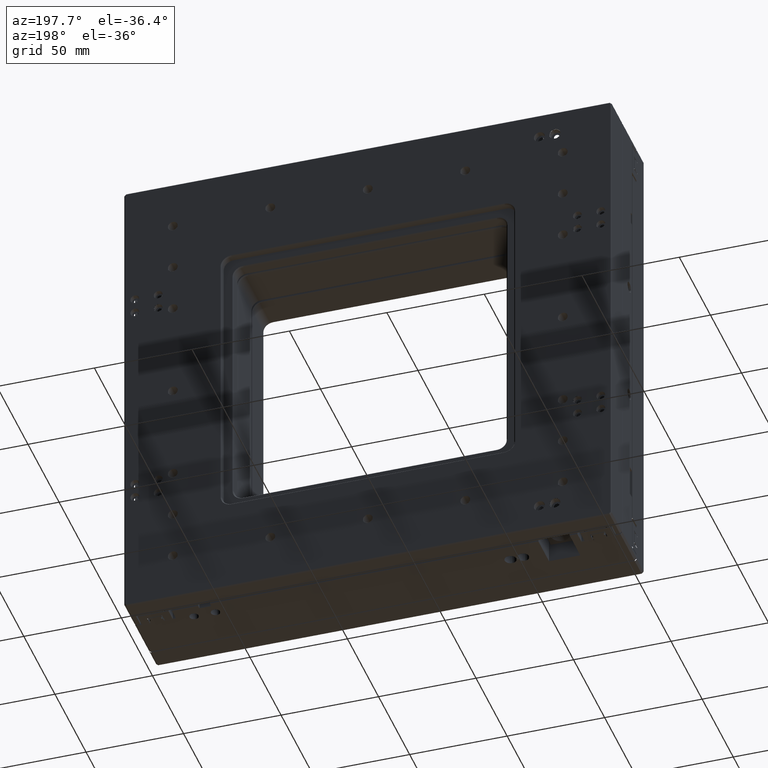
[diagram: clean part render]
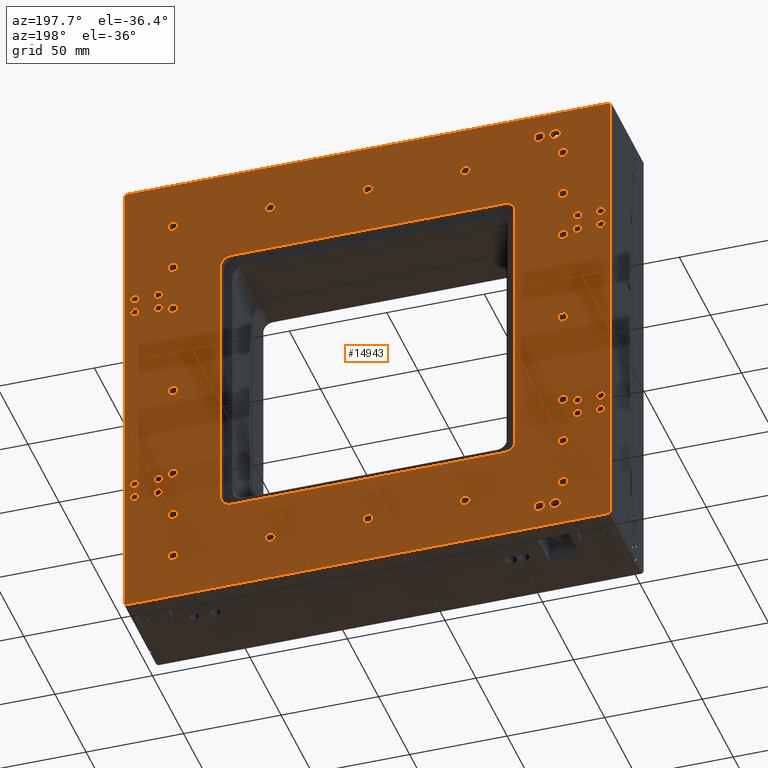
[diagram: same view with one face highlighted and labeled with its STEP entity id]
A machine part, auxiliary view. The second image highlights one B-rep face of the part: STEP entity #14943.
In plain terms, the highlighted planar face has unit normal (-0, 1, -0).
Its self-contained STEP definition (entity closure, byte-faithful):
#11 = CIRCLE ( 'NONE', #2157, 2.225000000000005000 ) ;
#21 = VERTEX_POINT ( 'NONE', #8664 ) ;
#25 = CARTESIAN_POINT ( 'NONE',  ( -129.5477721377215200, 52.00000000000004300, 224.9999999999997400 ) ) ;
#32 = AXIS2_PLACEMENT_3D ( 'NONE', #13646, #9964, #10046 ) ;
#126 = FACE_BOUND ( 'NONE', #4302, .T. ) ;
#239 = LINE ( 'NONE', #11758, #18402 ) ;
#277 = ORIENTED_EDGE ( 'NONE', *, *, #18515, .T. ) ;
#283 = DIRECTION ( 'NONE',  ( 1.990750518977365900E-023, -1.000000000000000000, 7.182434939466754200E-017 ) ) ;
#342 = DIRECTION ( 'NONE',  ( -1.990750518977365900E-023, 1.000000000000000000, -7.182434939466754200E-017 ) ) ;
#351 = EDGE_CURVE ( 'NONE', #11516, #13882, #12993, .T. ) ;
#359 = DIRECTION ( 'NONE',  ( 1.000000000000000000, 0.0000000000000000000, 3.750753461571512500E-015 ) ) ;
#369 = CIRCLE ( 'NONE', #13375, 2.225000000000032500 ) ;
#384 = CIRCLE ( 'NONE', #14778, 2.500000000000002200 ) ;
#428 = EDGE_CURVE ( 'NONE', #15281, #3592, #18502, .T. ) ;
#457 = ORIENTED_EDGE ( 'NONE', *, *, #8488, .T. ) ;
#467 = DIRECTION ( 'NONE',  ( 1.000000000000000000, 0.0000000000000000000, 0.0000000000000000000 ) ) ;
#498 = AXIS2_PLACEMENT_3D ( 'NONE', #11249, #22292, #18522 ) ;
#508 = AXIS2_PLACEMENT_3D ( 'NONE', #9022, #23909, #14691 ) ;
#510 = DIRECTION ( 'NONE',  ( -1.990750518977365900E-023, 1.000000000000000000, -7.182434939466754200E-017 ) ) ;
#544 = CIRCLE ( 'NONE', #21435, 2.500000000000002200 ) ;
#565 = CARTESIAN_POINT ( 'NONE',  ( -247.0477721377214400, 52.00000000000004300, 194.9999999999993500 ) ) ;
#585 = DIRECTION ( 'NONE',  ( -1.990750518977365900E-023, 1.000000000000000000, -7.182434939466754200E-017 ) ) ;
#635 = ORIENTED_EDGE ( 'NONE', *, *, #4820, .F. ) ;
#659 = DIRECTION ( 'NONE',  ( 1.000000000000000000, 0.0000000000000000000, 2.775557561562889000E-015 ) ) ;
#667 = ORIENTED_EDGE ( 'NONE', *, *, #13645, .F. ) ;
#669 = CARTESIAN_POINT ( 'NONE',  ( -265.0477721377215500, 52.00000000000004300, 236.9999999999992900 ) ) ;
#675 = AXIS2_PLACEMENT_3D ( 'NONE', #7951, #22766, #13711 ) ;
#677 = CARTESIAN_POINT ( 'NONE',  ( -273.0477721377208100, 52.00000000000003600, 12.99999999999926300 ) ) ;
#690 = CIRCLE ( 'NONE', #2792, 5.500000000000005300 ) ;
#710 = CIRCLE ( 'NONE', #8946, 5.500000000000005300 ) ;
#718 = VECTOR ( 'NONE', #12322, 1000.000000000000100 ) ;
#726 = CARTESIAN_POINT ( 'NONE',  ( -79.54777213772084100, 52.00000000000003600, 24.99999999999991500 ) ) ;
#750 = DIRECTION ( 'NONE',  ( -1.990750518977365900E-023, 1.000000000000000000, -7.182434939466754200E-017 ) ) ;
#770 = VERTEX_POINT ( 'NONE', #9507 ) ;
#777 = EDGE_CURVE ( 'NONE', #6227, #15115, #18189, .T. ) ;
#830 = VERTEX_POINT ( 'NONE', #726 ) ;
#914 = CARTESIAN_POINT ( 'NONE',  ( -67.32277213772100300, 52.00000000000003600, 72.99999999999992900 ) ) ;
#941 = CARTESIAN_POINT ( 'NONE',  ( -284.5477721377209800, 52.00000000000003600, 72.99999999999924700 ) ) ;
#963 = ORIENTED_EDGE ( 'NONE', *, *, #1723, .F. ) ;
#982 = CIRCLE ( 'NONE', #9082, 2.500000000000002200 ) ;
#996 = CARTESIAN_POINT ( 'NONE',  ( -77.04777213772101200, 52.00000000000003600, 74.99999999999992900 ) ) ;
#1009 = VERTEX_POINT ( 'NONE', #23173 ) ;
#1064 = CARTESIAN_POINT ( 'NONE',  ( -277.0477721377214900, 52.00000000000004300, 199.9999999999992300 ) ) ;
#1090 = EDGE_CURVE ( 'NONE', #1474, #2765, #20483, .T. ) ;
#1116 = CARTESIAN_POINT ( 'NONE',  ( -265.0477721377208100, 52.00000000000003600, 12.99999999999928900 ) ) ;
#1145 = DIRECTION ( 'NONE',  ( -1.990750518977365900E-023, 1.000000000000000000, -7.182434939466754200E-017 ) ) ;
#1147 = CARTESIAN_POINT ( 'NONE',  ( -77.04777213772135300, 52.00000000000004300, 174.9999999999999400 ) ) ;
#1231 = DIRECTION ( 'NONE',  ( -1.990750518977365900E-023, 1.000000000000000000, -7.182434939466754200E-017 ) ) ;
#1238 = ORIENTED_EDGE ( 'NONE', *, *, #23728, .F. ) ;
#1255 = DIRECTION ( 'NONE',  ( -1.000000000000000000, 0.0000000000000000000, 0.0000000000000000000 ) ) ;
#1261 = FACE_BOUND ( 'NONE', #18662, .T. ) ;
#1262 = CARTESIAN_POINT ( 'NONE',  ( -59.77277213772102000, 52.00000000000003600, 72.99999999999995700 ) ) ;
#1269 = EDGE_CURVE ( 'NONE', #5462, #4796, #3538, .T. ) ;
#1282 = FACE_BOUND ( 'NONE', #5434, .T. ) ;
#1299 = ORIENTED_EDGE ( 'NONE', *, *, #21542, .T. ) ;
#1302 = CARTESIAN_POINT ( 'NONE',  ( -79.54777213772101200, 52.00000000000003600, 74.99999999999991500 ) ) ;
#1312 = CARTESIAN_POINT ( 'NONE',  ( -273.0477721377208100, 52.00000000000003600, 12.99999999999926300 ) ) ;
#1333 = DIRECTION ( 'NONE',  ( 1.000000000000000000, 0.0000000000000000000, 2.775557561562889000E-015 ) ) ;
#1341 = CARTESIAN_POINT ( 'NONE',  ( -79.54777213772135300, 52.00000000000004300, 174.9999999999999400 ) ) ;
#1343 = VERTEX_POINT ( 'NONE', #914 ) ;
#1474 = VERTEX_POINT ( 'NONE', #1262 ) ;
#1483 = ORIENTED_EDGE ( 'NONE', *, *, #17117, .F. ) ;
#1497 = DIRECTION ( 'NONE',  ( 1.990750518977365900E-023, -1.000000000000000000, 7.182434939466754200E-017 ) ) ;
#1501 = EDGE_LOOP ( 'NONE', ( #20820, #12857 ) ) ;
#1543 = VERTEX_POINT ( 'NONE', #7770 ) ;
#1613 = ORIENTED_EDGE ( 'NONE', *, *, #11326, .F. ) ;
#1661 = DIRECTION ( 'NONE',  ( 1.000000000000000000, 0.0000000000000000000, 6.237208003512101600E-015 ) ) ;
#1677 = VERTEX_POINT ( 'NONE', #12415 ) ;
#1723 = EDGE_CURVE ( 'NONE', #23569, #5970, #21036, .T. ) ;
#1778 = ORIENTED_EDGE ( 'NONE', *, *, #14886, .T. ) ;
#1779 = CIRCLE ( 'NONE', #18157, 2.500000000000002200 ) ;
#1783 = EDGE_CURVE ( 'NONE', #6038, #6486, #10930, .T. ) ;
#1850 = FACE_BOUND ( 'NONE', #18109, .T. ) ;
#1851 = EDGE_LOOP ( 'NONE', ( #5475, #14408, #1778, #22680, #20146, #18500, #1299, #20569 ) ) ;
#1876 = CIRCLE ( 'NONE', #7501, 2.774999999999971900 ) ;
#1892 = AXIS2_PLACEMENT_3D ( 'NONE', #12095, #10268, #3156 ) ;
#1905 = VERTEX_POINT ( 'NONE', #11896 ) ;
#1953 = VECTOR ( 'NONE', #19121, 1000.000000000000000 ) ;
#1975 = DIRECTION ( 'NONE',  ( -1.990750518977365900E-023, 1.000000000000000000, -7.182434939466754200E-017 ) ) ;
#1976 = ORIENTED_EDGE ( 'NONE', *, *, #15750, .F. ) ;
#1996 = EDGE_LOOP ( 'NONE', ( #20165, #1976 ) ) ;
#2067 = CIRCLE ( 'NONE', #4018, 2.225000000000005000 ) ;
#2082 = EDGE_CURVE ( 'NONE', #3597, #21750, #3494, .T. ) ;
#2091 = VERTEX_POINT ( 'NONE', #12606 ) ;
#2095 = AXIS2_PLACEMENT_3D ( 'NONE', #16559, #14780, #3827 ) ;
#2097 = DIRECTION ( 'NONE',  ( -1.990750518977365900E-023, 1.000000000000000000, -7.182434939466754200E-017 ) ) ;
#2111 = DIRECTION ( 'NONE',  ( -1.000000000000000000, 0.0000000000000000000, 0.0000000000000000000 ) ) ;
#2125 = CARTESIAN_POINT ( 'NONE',  ( -300.8406653565351100, 52.00000000000004300, 249.4999999999991800 ) ) ;
#2128 = ORIENTED_EDGE ( 'NONE', *, *, #12469, .F. ) ;
#2144 = ORIENTED_EDGE ( 'NONE', *, *, #15129, .F. ) ;
#2157 = AXIS2_PLACEMENT_3D ( 'NONE', #22556, #2097, #15114 ) ;
#2202 = CARTESIAN_POINT ( 'NONE',  ( -298.7727721377210100, 52.00000000000003600, 64.99999999999914700 ) ) ;
#2207 = CIRCLE ( 'NONE', #17648, 2.225000000000005000 ) ;
#2228 = ORIENTED_EDGE ( 'NONE', *, *, #18958, .F. ) ;
#2240 = DIRECTION ( 'NONE',  ( -1.990750518977365900E-023, 1.000000000000000000, -7.182434939466754200E-017 ) ) ;
#2251 = EDGE_CURVE ( 'NONE', #16425, #19224, #11735, .T. ) ;
#2268 = CARTESIAN_POINT ( 'NONE',  ( -74.54777213772082700, 52.00000000000003600, 24.99999999999993200 ) ) ;
#2273 = AXIS2_PLACEMENT_3D ( 'NONE', #4311, #10932, #4162 ) ;
#2279 = CARTESIAN_POINT ( 'NONE',  ( -127.0477721377208400, 52.00000000000003600, 24.99999999999974400 ) ) ;
#2308 = CIRCLE ( 'NONE', #4508, 2.225000000000005000 ) ;
#2317 = CARTESIAN_POINT ( 'NONE',  ( -277.0477721377213800, 52.00000000000004300, 174.9999999999992300 ) ) ;
#2384 = CARTESIAN_POINT ( 'NONE',  ( -107.0477721377209700, 52.00000000000003600, 54.99999999999984400 ) ) ;
#2396 = CIRCLE ( 'NONE', #10586, 2.225000000000032500 ) ;
#2412 = EDGE_CURVE ( 'NONE', #830, #18655, #544, .T. ) ;
#2431 = CARTESIAN_POINT ( 'NONE',  ( -53.25487891890727400, 52.00000000000003600, 0.5000000000000143200 ) ) ;
#2464 = VERTEX_POINT ( 'NONE', #15825 ) ;
#2483 = EDGE_CURVE ( 'NONE', #16882, #7561, #22440, .T. ) ;
#2523 = DIRECTION ( 'NONE',  ( -1.990750518977365900E-023, 1.000000000000000000, -7.182434939466754200E-017 ) ) ;
#2599 = CARTESIAN_POINT ( 'NONE',  ( -177.0477721377215500, 52.00000000000004300, 224.9999999999996000 ) ) ;
#2630 = EDGE_CURVE ( 'NONE', #1905, #8734, #384, .T. ) ;
#2646 = CIRCLE ( 'NONE', #12004, 2.774999999999971900 ) ;
#2657 = EDGE_CURVE ( 'NONE', #19074, #22629, #8142, .T. ) ;
#2676 = DIRECTION ( 'NONE',  ( 1.990750518977365900E-023, -1.000000000000000000, 7.182434939466754200E-017 ) ) ;
#2705 = AXIS2_PLACEMENT_3D ( 'NONE', #996, #10241, #17241 ) ;
#2722 = AXIS2_PLACEMENT_3D ( 'NONE', #3955, #15142, #7843 ) ;
#2751 = CARTESIAN_POINT ( 'NONE',  ( -52.90132552831487800, 52.00000000000004300, 249.1464466094067800 ) ) ;
#2753 = CARTESIAN_POINT ( 'NONE',  ( -267.8227721377215300, 52.00000000000004300, 236.9999999999992900 ) ) ;
#2765 = VERTEX_POINT ( 'NONE', #5818 ) ;
#2768 = CARTESIAN_POINT ( 'NONE',  ( -129.5477721377208400, 52.00000000000003600, 24.99999999999973400 ) ) ;
#2787 = ORIENTED_EDGE ( 'NONE', *, *, #17922, .F. ) ;
#2792 = AXIS2_PLACEMENT_3D ( 'NONE', #565, #2676, #4469 ) ;
#2801 = EDGE_LOOP ( 'NONE', ( #22287, #8122 ) ) ;
#2835 = VECTOR ( 'NONE', #22538, 1000.000000000000000 ) ;
#2854 = CARTESIAN_POINT ( 'NONE',  ( -77.04777213772145200, 52.00000000000004300, 199.9999999999999100 ) ) ;
#2866 = CIRCLE ( 'NONE', #3505, 2.224999999999977000 ) ;
#2918 = ORIENTED_EDGE ( 'NONE', *, *, #8466, .F. ) ;
#2945 = CARTESIAN_POINT ( 'NONE',  ( -53.25487891890813300, 52.00000000000004300, 249.5000000000000000 ) ) ;
#2946 = DIRECTION ( 'NONE',  ( -1.990750518977365900E-023, 1.000000000000000000, -7.182434939466754200E-017 ) ) ;
#2952 = EDGE_CURVE ( 'NONE', #18653, #19011, #20249, .T. ) ;
#2967 = CARTESIAN_POINT ( 'NONE',  ( -247.0477721377214400, 52.00000000000004300, 200.4999999999993500 ) ) ;
#2973 = ORIENTED_EDGE ( 'NONE', *, *, #22681, .F. ) ;
#2987 = DIRECTION ( 'NONE',  ( -1.990750518977365900E-023, 1.000000000000000000, -7.182434939466754200E-017 ) ) ;
#3054 = FACE_BOUND ( 'NONE', #16551, .T. ) ;
#3074 = DIRECTION ( 'NONE',  ( -1.000000000000000000, 0.0000000000000000000, 0.0000000000000000000 ) ) ;
#3077 = ORIENTED_EDGE ( 'NONE', *, *, #7827, .T. ) ;
#3118 = DIRECTION ( 'NONE',  ( 1.000000000000000000, 0.0000000000000000000, 0.0000000000000000000 ) ) ;
#3140 = AXIS2_PLACEMENT_3D ( 'NONE', #17875, #21525, #13924 ) ;
#3156 = DIRECTION ( 'NONE',  ( 1.000000000000000000, 0.0000000000000000000, 0.0000000000000000000 ) ) ;
#3160 = CARTESIAN_POINT ( 'NONE',  ( -296.5477721377213800, 52.00000000000004300, 184.9999999999991800 ) ) ;
#3166 = CARTESIAN_POINT ( 'NONE',  ( -67.32277213772097500, 52.00000000000003600, 64.99999999999998600 ) ) ;
#3172 = EDGE_LOOP ( 'NONE', ( #4259, #2787 ) ) ;
#3196 = VERTEX_POINT ( 'NONE', #18390 ) ;
#3250 = LINE ( 'NONE', #16577, #20180 ) ;
#3274 = CIRCLE ( 'NONE', #20016, 2.224999999999977000 ) ;
#3307 = ORIENTED_EDGE ( 'NONE', *, *, #15064, .F. ) ;
#3432 = CARTESIAN_POINT ( 'NONE',  ( -52.54777213772075600, 52.00000000000003600, 0.9999999999999592500 ) ) ;
#3444 = ORIENTED_EDGE ( 'NONE', *, *, #6558, .F. ) ;
#3468 = EDGE_CURVE ( 'NONE', #6315, #1543, #5261, .T. ) ;
#3475 = EDGE_CURVE ( 'NONE', #9340, #22408, #10964, .T. ) ;
#3494 = LINE ( 'NONE', #19970, #23028 ) ;
#3502 = VERTEX_POINT ( 'NONE', #14150 ) ;
#3505 = AXIS2_PLACEMENT_3D ( 'NONE', #14155, #21440, #19582 ) ;
#3515 = DIRECTION ( 'NONE',  ( 1.000000000000000000, 0.0000000000000000000, 0.0000000000000000000 ) ) ;
#3524 = CARTESIAN_POINT ( 'NONE',  ( -227.0477721377215500, 52.00000000000004300, 224.9999999999994300 ) ) ;
#3538 = CIRCLE ( 'NONE', #6044, 2.774999999999971900 ) ;
#3592 = VERTEX_POINT ( 'NONE', #21909 ) ;
#3597 = VERTEX_POINT ( 'NONE', #10861 ) ;
#3628 = CARTESIAN_POINT ( 'NONE',  ( -284.5477721377213800, 52.00000000000004300, 176.9999999999991500 ) ) ;
#3635 = CARTESIAN_POINT ( 'NONE',  ( -277.0477721377213800, 52.00000000000004300, 174.9999999999992300 ) ) ;
#3642 = FACE_BOUND ( 'NONE', #13160, .T. ) ;
#3654 = ORIENTED_EDGE ( 'NONE', *, *, #9248, .F. ) ;
#3678 = DIRECTION ( 'NONE',  ( 1.000000000000000000, 0.0000000000000000000, 6.237208003512101600E-015 ) ) ;
#3700 = CARTESIAN_POINT ( 'NONE',  ( -247.0477721377209500, 52.00000000000003600, 54.99999999999935300 ) ) ;
#3711 = EDGE_CURVE ( 'NONE', #14289, #21, #11813, .T. ) ;
#3712 = DIRECTION ( 'NONE',  ( -1.990750518977365900E-023, 1.000000000000000000, -7.182434939466754200E-017 ) ) ;
#3726 = EDGE_CURVE ( 'NONE', #17593, #1677, #21054, .T. ) ;
#3750 = LINE ( 'NONE', #21065, #1953 ) ;
#3766 = CARTESIAN_POINT ( 'NONE',  ( -101.5477721377214500, 52.00000000000004300, 194.9999999999998300 ) ) ;
#3782 = CARTESIAN_POINT ( 'NONE',  ( -69.54777213772139500, 52.00000000000004300, 184.9999999999999400 ) ) ;
#3827 = DIRECTION ( 'NONE',  ( 1.000000000000000000, 0.0000000000000000000, 6.237208003512101600E-015 ) ) ;
#3874 = ORIENTED_EDGE ( 'NONE', *, *, #777, .F. ) ;
#3885 = CARTESIAN_POINT ( 'NONE',  ( -77.04777213772118200, 52.00000000000004300, 124.9999999999999300 ) ) ;
#3918 = FACE_BOUND ( 'NONE', #16234, .T. ) ;
#3937 = EDGE_CURVE ( 'NONE', #1543, #6315, #9240, .T. ) ;
#3939 = CARTESIAN_POINT ( 'NONE',  ( -77.04777213772152300, 52.00000000000004300, 224.9999999999999100 ) ) ;
#3950 = ORIENTED_EDGE ( 'NONE', *, *, #11778, .F. ) ;
#3955 = CARTESIAN_POINT ( 'NONE',  ( -77.04777213772091200, 52.00000000000003600, 49.99999999999993600 ) ) ;
#3979 = EDGE_LOOP ( 'NONE', ( #13291, #7081 ) ) ;
#3986 = VERTEX_POINT ( 'NONE', #2753 ) ;
#3995 = DIRECTION ( 'NONE',  ( -1.000000000000000000, 0.0000000000000000000, 0.0000000000000000000 ) ) ;
#4018 = AXIS2_PLACEMENT_3D ( 'NONE', #14619, #13245, #3678 ) ;
#4073 = VERTEX_POINT ( 'NONE', #3166 ) ;
#4086 = AXIS2_PLACEMENT_3D ( 'NONE', #9089, #11228, #20266 ) ;
#4153 = VERTEX_POINT ( 'NONE', #18543 ) ;
#4162 = DIRECTION ( 'NONE',  ( 1.000000000000000000, 0.0000000000000000000, 4.163336342344333100E-015 ) ) ;
#4227 = CARTESIAN_POINT ( 'NONE',  ( -273.0477721377215500, 52.00000000000004300, 236.9999999999992600 ) ) ;
#4247 = CARTESIAN_POINT ( 'NONE',  ( -77.04777213772084100, 52.00000000000003600, 24.99999999999992500 ) ) ;
#4254 = EDGE_LOOP ( 'NONE', ( #18728, #8341 ) ) ;
#4259 = ORIENTED_EDGE ( 'NONE', *, *, #20167, .F. ) ;
#4302 = EDGE_LOOP ( 'NONE', ( #3444, #21808 ) ) ;
#4311 = CARTESIAN_POINT ( 'NONE',  ( -177.0477721377208100, 52.00000000000003600, 24.99999999999957700 ) ) ;
#4417 = DIRECTION ( 'NONE',  ( 1.000000000000000000, 0.0000000000000000000, 0.0000000000000000000 ) ) ;
#4432 = VERTEX_POINT ( 'NONE', #11391 ) ;
#4460 = CARTESIAN_POINT ( 'NONE',  ( -282.3227721377209600, 52.00000000000003600, 72.99999999999926100 ) ) ;
#4469 = DIRECTION ( 'NONE',  ( 1.000000000000000000, 0.0000000000000000000, 5.046468293750706700E-015 ) ) ;
#4473 = CARTESIAN_POINT ( 'NONE',  ( -224.5477721377208400, 52.00000000000003600, 24.99999999999942100 ) ) ;
#4483 = DIRECTION ( 'NONE',  ( -1.000000000000000000, 0.0000000000000000000, 0.0000000000000000000 ) ) ;
#4497 = FACE_BOUND ( 'NONE', #13848, .T. ) ;
#4508 = AXIS2_PLACEMENT_3D ( 'NONE', #15217, #750, #8068 ) ;
#4561 = ORIENTED_EDGE ( 'NONE', *, *, #21112, .F. ) ;
#4565 = EDGE_CURVE ( 'NONE', #2765, #1474, #7486, .T. ) ;
#4575 = VECTOR ( 'NONE', #21387, 1000.000000000000000 ) ;
#4605 = AXIS2_PLACEMENT_3D ( 'NONE', #3160, #17906, #12334 ) ;
#4630 = CARTESIAN_POINT ( 'NONE',  ( -277.0477721377209300, 52.00000000000003600, 49.99999999999924000 ) ) ;
#4634 = VERTEX_POINT ( 'NONE', #6313 ) ;
#4674 = AXIS2_PLACEMENT_3D ( 'NONE', #6193, #11427, #15361 ) ;
#4675 = EDGE_CURVE ( 'NONE', #23865, #770, #6373, .T. ) ;
#4692 = CIRCLE ( 'NONE', #23113, 2.500000000000002200 ) ;
#4715 = DIRECTION ( 'NONE',  ( 0.7071067811865500200, -5.078747043454922600E-017, -0.7071067811865451300 ) ) ;
#4734 = DIRECTION ( 'NONE',  ( -1.990750518977365900E-023, 1.000000000000000000, -7.182434939466754200E-017 ) ) ;
#4736 = CARTESIAN_POINT ( 'NONE',  ( -296.5477721377209800, 52.00000000000003600, 64.99999999999916200 ) ) ;
#4770 = VERTEX_POINT ( 'NONE', #21950 ) ;
#4771 = DIRECTION ( 'NONE',  ( 1.000000000000000000, 0.0000000000000000000, 0.0000000000000000000 ) ) ;
#4783 = DIRECTION ( 'NONE',  ( -1.990750518977365900E-023, 1.000000000000000000, -7.182434939466754200E-017 ) ) ;
#4796 = VERTEX_POINT ( 'NONE', #21864 ) ;
#4807 = CARTESIAN_POINT ( 'NONE',  ( -275.8227721377207900, 52.00000000000003600, 12.99999999999925200 ) ) ;
#4820 = EDGE_CURVE ( 'NONE', #22540, #15867, #5497, .T. ) ;
#4889 = VERTEX_POINT ( 'NONE', #2125 ) ;
#5075 = FACE_BOUND ( 'NONE', #2801, .T. ) ;
#5116 = EDGE_CURVE ( 'NONE', #3592, #15281, #10901, .T. ) ;
#5180 = VERTEX_POINT ( 'NONE', #10002 ) ;
#5194 = DIRECTION ( 'NONE',  ( -1.990750518977365900E-023, 1.000000000000000000, -7.182434939466754200E-017 ) ) ;
#5216 = CARTESIAN_POINT ( 'NONE',  ( -284.5477721377209800, 52.00000000000003600, 72.99999999999924700 ) ) ;
#5252 = DIRECTION ( 'NONE',  ( -1.990750518977365900E-023, 1.000000000000000000, -7.182434939466754200E-017 ) ) ;
#5261 = CIRCLE ( 'NONE', #16527, 2.500000000000002200 ) ;
#5271 = EDGE_CURVE ( 'NONE', #6486, #6038, #2866, .T. ) ;
#5302 = EDGE_CURVE ( 'NONE', #10086, #4770, #12285, .T. ) ;
#5340 = EDGE_CURVE ( 'NONE', #7107, #9513, #11720, .T. ) ;
#5415 = ORIENTED_EDGE ( 'NONE', *, *, #2483, .T. ) ;
#5434 = EDGE_LOOP ( 'NONE', ( #20931, #23532 ) ) ;
#5451 = DIRECTION ( 'NONE',  ( 3.469446951953614200E-015, -7.182434939466754200E-017, -1.000000000000000000 ) ) ;
#5452 = LINE ( 'NONE', #3432, #21237 ) ;
#5462 = VERTEX_POINT ( 'NONE', #20538 ) ;
#5475 = ORIENTED_EDGE ( 'NONE', *, *, #15567, .T. ) ;
#5493 = CARTESIAN_POINT ( 'NONE',  ( -286.7727721377210100, 52.00000000000003600, 64.99999999999913300 ) ) ;
#5496 = VECTOR ( 'NONE', #22061, 1000.000000000000000 ) ;
#5497 = CIRCLE ( 'NONE', #23025, 2.225000000000005000 ) ;
#5515 = CIRCLE ( 'NONE', #7698, 2.500000000000002200 ) ;
#5560 = CARTESIAN_POINT ( 'NONE',  ( -71.77277213772099200, 52.00000000000003600, 64.99999999999995700 ) ) ;
#5589 = CARTESIAN_POINT ( 'NONE',  ( -227.0477721377208400, 52.00000000000003600, 24.99999999999941000 ) ) ;
#5611 = DIRECTION ( 'NONE',  ( -1.990750518977365900E-023, 1.000000000000000000, -7.182434939466754200E-017 ) ) ;
#5647 = DIRECTION ( 'NONE',  ( -1.990750518977365900E-023, 1.000000000000000000, -7.182434939466754200E-017 ) ) ;
#5653 = FACE_BOUND ( 'NONE', #20949, .T. ) ;
#5666 = DIRECTION ( 'NONE',  ( 1.000000000000000000, 0.0000000000000000000, 6.237208003512024300E-015 ) ) ;
#5687 = ORIENTED_EDGE ( 'NONE', *, *, #5116, .F. ) ;
#5777 = CIRCLE ( 'NONE', #14373, 2.500000000000002200 ) ;
#5814 = DIRECTION ( 'NONE',  ( -1.990750518977365900E-023, 1.000000000000000000, -7.182434939466754200E-017 ) ) ;
#5817 = EDGE_LOOP ( 'NONE', ( #22199, #2144 ) ) ;
#5818 = CARTESIAN_POINT ( 'NONE',  ( -55.32277213772101000, 52.00000000000003600, 72.99999999999998600 ) ) ;
#5827 = EDGE_CURVE ( 'NONE', #10177, #5180, #2207, .T. ) ;
#5851 = AXIS2_PLACEMENT_3D ( 'NONE', #15013, #2240, #20667 ) ;
#5897 = DIRECTION ( 'NONE',  ( 1.000000000000000000, 0.0000000000000000000, 4.163336342344333100E-015 ) ) ;
#5931 = FACE_BOUND ( 'NONE', #9621, .T. ) ;
#5959 = FACE_BOUND ( 'NONE', #6352, .T. ) ;
#5962 = CIRCLE ( 'NONE', #6469, 2.774999999999971900 ) ;
#5969 = CARTESIAN_POINT ( 'NONE',  ( -279.5477721377212100, 52.00000000000004300, 124.9999999999992200 ) ) ;
#5970 = VERTEX_POINT ( 'NONE', #16885 ) ;
#5999 = CARTESIAN_POINT ( 'NONE',  ( -107.0477721377209400, 52.00000000000003600, 49.49999999999983700 ) ) ;
#6038 = VERTEX_POINT ( 'NONE', #22772 ) ;
#6044 = AXIS2_PLACEMENT_3D ( 'NONE', #1116, #19384, #21327 ) ;
#6051 = DIRECTION ( 'NONE',  ( 1.000000000000000000, 0.0000000000000000000, 6.237208003512024300E-015 ) ) ;
#6081 = CARTESIAN_POINT ( 'NONE',  ( -52.54777213772075600, 52.00000000000003600, 1.207106781186531500 ) ) ;
#6090 = DIRECTION ( 'NONE',  ( 1.000000000000000000, 0.0000000000000000000, 4.163336342344333100E-015 ) ) ;
#6097 = AXIS2_PLACEMENT_3D ( 'NONE', #677, #15222, #359 ) ;
#6106 = DIRECTION ( 'NONE',  ( -1.990750518977365900E-023, 1.000000000000000000, -7.182434939466754200E-017 ) ) ;
#6153 = DIRECTION ( 'NONE',  ( -1.990750518977365900E-023, 1.000000000000000000, -7.182434939466754200E-017 ) ) ;
#6183 = AXIS2_PLACEMENT_3D ( 'NONE', #5216, #20136, #7209 ) ;
#6193 = CARTESIAN_POINT ( 'NONE',  ( -77.04777213772118200, 52.00000000000004300, 124.9999999999999300 ) ) ;
#6214 = FACE_BOUND ( 'NONE', #12625, .T. ) ;
#6227 = VERTEX_POINT ( 'NONE', #19531 ) ;
#6236 = FACE_BOUND ( 'NONE', #14660, .T. ) ;
#6245 = VERTEX_POINT ( 'NONE', #17594 ) ;
#6275 = DIRECTION ( 'NONE',  ( 1.000000000000000000, 0.0000000000000000000, 0.0000000000000000000 ) ) ;
#6293 = EDGE_CURVE ( 'NONE', #10025, #13326, #9124, .T. ) ;
#6294 = CARTESIAN_POINT ( 'NONE',  ( -296.5477721377209800, 52.00000000000003600, 64.99999999999916200 ) ) ;
#6313 = CARTESIAN_POINT ( 'NONE',  ( -294.3227721377209600, 52.00000000000003600, 72.99999999999917600 ) ) ;
#6315 = VERTEX_POINT ( 'NONE', #19770 ) ;
#6324 = AXIS2_PLACEMENT_3D ( 'NONE', #3628, #3712, #20316 ) ;
#6330 = CARTESIAN_POINT ( 'NONE',  ( -273.0477721377215500, 52.00000000000004300, 236.9999999999992600 ) ) ;
#6352 = EDGE_LOOP ( 'NONE', ( #1483, #21376 ) ) ;
#6373 = CIRCLE ( 'NONE', #1892, 2.225000000000032500 ) ;
#6395 = CIRCLE ( 'NONE', #16176, 2.500000000000002200 ) ;
#6469 = AXIS2_PLACEMENT_3D ( 'NONE', #14804, #22386, #14959 ) ;
#6474 = DIRECTION ( 'NONE',  ( -1.990750518977365900E-023, 1.000000000000000000, -7.182434939466754200E-017 ) ) ;
#6486 = VERTEX_POINT ( 'NONE', #20400 ) ;
#6558 = EDGE_CURVE ( 'NONE', #8553, #8596, #7120, .T. ) ;
#6570 = DIRECTION ( 'NONE',  ( 1.000000000000000000, 0.0000000000000000000, 6.237208003512024300E-015 ) ) ;
#6663 = DIRECTION ( 'NONE',  ( -1.990750518977365900E-023, 1.000000000000000000, -7.182434939466754200E-017 ) ) ;
#6716 = AXIS2_PLACEMENT_3D ( 'NONE', #2854, #4734, #17530 ) ;
#6754 = ORIENTED_EDGE ( 'NONE', *, *, #15308, .F. ) ;
#6766 = CARTESIAN_POINT ( 'NONE',  ( -74.54777213772143800, 52.00000000000004300, 199.9999999999999100 ) ) ;
#6787 = FACE_BOUND ( 'NONE', #19982, .T. ) ;
#6874 = EDGE_CURVE ( 'NONE', #4796, #5462, #5962, .T. ) ;
#6942 = CARTESIAN_POINT ( 'NONE',  ( -55.32277213772098200, 52.00000000000003600, 65.00000000000000000 ) ) ;
#7037 = CARTESIAN_POINT ( 'NONE',  ( -69.54777213772101200, 52.00000000000003600, 72.99999999999991500 ) ) ;
#7049 = VERTEX_POINT ( 'NONE', #19147 ) ;
#7081 = ORIENTED_EDGE ( 'NONE', *, *, #3468, .F. ) ;
#7107 = VERTEX_POINT ( 'NONE', #4807 ) ;
#7119 = CARTESIAN_POINT ( 'NONE',  ( -69.54777213772136700, 52.00000000000004300, 176.9999999999999400 ) ) ;
#7120 = CIRCLE ( 'NONE', #16422, 2.500000000000002200 ) ;
#7132 = DIRECTION ( 'NONE',  ( 0.7071067811865402500, 5.078749858801375700E-017, 0.7071067811865549000 ) ) ;
#7145 = PLANE ( 'NONE',  #18004 ) ;
#7152 = EDGE_LOOP ( 'NONE', ( #8981, #8815 ) ) ;
#7153 = CARTESIAN_POINT ( 'NONE',  ( -277.0477721377210400, 52.00000000000003600, 74.99999999999923300 ) ) ;
#7179 = CARTESIAN_POINT ( 'NONE',  ( -71.77277213772140400, 52.00000000000004300, 184.9999999999999400 ) ) ;
#7209 = DIRECTION ( 'NONE',  ( 1.000000000000000000, 0.0000000000000000000, 6.237208003512024300E-015 ) ) ;
#7313 = DIRECTION ( 'NONE',  ( 1.000000000000000000, 0.0000000000000000000, 0.0000000000000000000 ) ) ;
#7385 = EDGE_CURVE ( 'NONE', #10556, #22455, #15688, .T. ) ;
#7404 = CIRCLE ( 'NONE', #2722, 2.500000000000002200 ) ;
#7416 = AXIS2_PLACEMENT_3D ( 'NONE', #3885, #5647, #9154 ) ;
#7419 = EDGE_CURVE ( 'NONE', #12297, #21418, #23186, .T. ) ;
#7471 = CIRCLE ( 'NONE', #6097, 2.774999999999971900 ) ;
#7486 = CIRCLE ( 'NONE', #675, 2.225000000000005000 ) ;
#7491 = CARTESIAN_POINT ( 'NONE',  ( -277.0477721377212100, 52.00000000000004300, 124.9999999999992300 ) ) ;
#7501 = AXIS2_PLACEMENT_3D ( 'NONE', #19670, #14164, #4771 ) ;
#7561 = VERTEX_POINT ( 'NONE', #8101 ) ;
#7605 = VERTEX_POINT ( 'NONE', #11545 ) ;
#7698 = AXIS2_PLACEMENT_3D ( 'NONE', #7153, #22088, #14739 ) ;
#7765 = ORIENTED_EDGE ( 'NONE', *, *, #14995, .F. ) ;
#7770 = CARTESIAN_POINT ( 'NONE',  ( -274.5477721377214900, 52.00000000000004300, 199.9999999999992300 ) ) ;
#7815 = ORIENTED_EDGE ( 'NONE', *, *, #4675, .F. ) ;
#7827 = EDGE_CURVE ( 'NONE', #13458, #18653, #10195, .T. ) ;
#7843 = DIRECTION ( 'NONE',  ( 1.000000000000000000, 0.0000000000000000000, 2.775557561562889000E-015 ) ) ;
#7906 = EDGE_CURVE ( 'NONE', #4153, #18559, #22010, .T. ) ;
#7911 = DIRECTION ( 'NONE',  ( -1.990750518977365900E-023, 1.000000000000000000, -7.182434939466754200E-017 ) ) ;
#7912 = CIRCLE ( 'NONE', #2095, 2.225000000000005000 ) ;
#7915 = FACE_BOUND ( 'NONE', #3172, .T. ) ;
#7936 = VERTEX_POINT ( 'NONE', #5560 ) ;
#7951 = CARTESIAN_POINT ( 'NONE',  ( -57.54777213772101200, 52.00000000000003600, 72.99999999999997200 ) ) ;
#8034 = EDGE_LOOP ( 'NONE', ( #19610, #3654 ) ) ;
#8035 = CIRCLE ( 'NONE', #16994, 2.225000000000005000 ) ;
#8056 = VERTEX_POINT ( 'NONE', #2202 ) ;
#8068 = DIRECTION ( 'NONE',  ( 1.000000000000000000, 0.0000000000000000000, 6.237208003512101600E-015 ) ) ;
#8086 = DIRECTION ( 'NONE',  ( -1.000000000000000000, -1.990750543896442900E-023, -3.469446951953614200E-015 ) ) ;
#8101 = CARTESIAN_POINT ( 'NONE',  ( -52.54777213772161600, 52.00000000000004300, 248.7928932188134800 ) ) ;
#8122 = ORIENTED_EDGE ( 'NONE', *, *, #23313, .F. ) ;
#8125 = ORIENTED_EDGE ( 'NONE', *, *, #2952, .T. ) ;
#8142 = CIRCLE ( 'NONE', #15556, 2.225000000000005000 ) ;
#8143 = DIRECTION ( 'NONE',  ( -1.990750518977365900E-023, 1.000000000000000000, -7.182434939466754200E-017 ) ) ;
#8169 = CIRCLE ( 'NONE', #19858, 2.500000000000002200 ) ;
#8204 = DIRECTION ( 'NONE',  ( -1.990750518977365900E-023, 1.000000000000000000, -7.182434939466754200E-017 ) ) ;
#8280 = CARTESIAN_POINT ( 'NONE',  ( -284.5477721377209800, 52.00000000000003600, 64.99999999999914700 ) ) ;
#8341 = ORIENTED_EDGE ( 'NONE', *, *, #1783, .F. ) ;
#8343 = CARTESIAN_POINT ( 'NONE',  ( -53.04777213772156600, 52.00000000000004300, 249.5000000000000000 ) ) ;
#8359 = EDGE_CURVE ( 'NONE', #21289, #18523, #10099, .T. ) ;
#8361 = AXIS2_PLACEMENT_3D ( 'NONE', #14948, #9187, #3995 ) ;
#8372 = DIRECTION ( 'NONE',  ( 1.000000000000000000, 0.0000000000000000000, 0.0000000000000000000 ) ) ;
#8381 = CIRCLE ( 'NONE', #16578, 2.500000000000002200 ) ;
#8391 = ORIENTED_EDGE ( 'NONE', *, *, #6874, .F. ) ;
#8394 = CARTESIAN_POINT ( 'NONE',  ( -270.2727721377216300, 52.00000000000004300, 236.9999999999992600 ) ) ;
#8450 = EDGE_LOOP ( 'NONE', ( #9362, #20253 ) ) ;
#8466 = EDGE_CURVE ( 'NONE', #13882, #11516, #12263, .T. ) ;
#8488 = EDGE_CURVE ( 'NONE', #19011, #16389, #3250, .T. ) ;
#8490 = FACE_BOUND ( 'NONE', #8943, .T. ) ;
#8538 = VERTEX_POINT ( 'NONE', #13414 ) ;
#8553 = VERTEX_POINT ( 'NONE', #13015 ) ;
#8590 = LINE ( 'NONE', #23371, #22123 ) ;
#8596 = VERTEX_POINT ( 'NONE', #2768 ) ;
#8603 = DIRECTION ( 'NONE',  ( -1.990750518977365900E-023, 1.000000000000000000, -7.182434939466754200E-017 ) ) ;
#8664 = CARTESIAN_POINT ( 'NONE',  ( -174.5477721377215500, 52.00000000000004300, 224.9999999999996000 ) ) ;
#8707 = CARTESIAN_POINT ( 'NONE',  ( -74.54777213772091200, 52.00000000000003600, 49.99999999999994300 ) ) ;
#8734 = VERTEX_POINT ( 'NONE', #19474 ) ;
#8777 = FACE_BOUND ( 'NONE', #11573, .T. ) ;
#8815 = ORIENTED_EDGE ( 'NONE', *, *, #7385, .F. ) ;
#8840 = CARTESIAN_POINT ( 'NONE',  ( -57.54777213772098300, 52.00000000000003600, 64.99999999999998600 ) ) ;
#8849 = ORIENTED_EDGE ( 'NONE', *, *, #6293, .F. ) ;
#8858 = EDGE_CURVE ( 'NONE', #770, #23865, #14390, .T. ) ;
#8863 = AXIS2_PLACEMENT_3D ( 'NONE', #16437, #14079, #23862 ) ;
#8864 = DIRECTION ( 'NONE',  ( -1.990750518977365900E-023, 1.000000000000000000, -7.182434939466754200E-017 ) ) ;
#8937 = DIRECTION ( 'NONE',  ( 1.000000000000000000, 0.0000000000000000000, 0.0000000000000000000 ) ) ;
#8943 = EDGE_LOOP ( 'NONE', ( #21650, #9696 ) ) ;
#8944 = CIRCLE ( 'NONE', #4086, 2.224999999999977000 ) ;
#8946 = AXIS2_PLACEMENT_3D ( 'NONE', #3700, #10879, #10732 ) ;
#8969 = DIRECTION ( 'NONE',  ( -1.990750518977365900E-023, 1.000000000000000000, -7.182434939466754200E-017 ) ) ;
#8976 = CARTESIAN_POINT ( 'NONE',  ( -177.0477721377211800, 52.00000000000004300, 124.9999999999995900 ) ) ;
#8981 = ORIENTED_EDGE ( 'NONE', *, *, #21207, .F. ) ;
#9000 = DIRECTION ( 'NONE',  ( 1.000000000000000000, 0.0000000000000000000, 6.237208003512101600E-015 ) ) ;
#9006 = CARTESIAN_POINT ( 'NONE',  ( -69.54777213772139500, 52.00000000000004300, 184.9999999999999400 ) ) ;
#9015 = CARTESIAN_POINT ( 'NONE',  ( -77.04777213772145200, 52.00000000000004300, 199.9999999999999100 ) ) ;
#9021 = CARTESIAN_POINT ( 'NONE',  ( -294.3227721377209600, 52.00000000000003600, 64.99999999999917600 ) ) ;
#9022 = CARTESIAN_POINT ( 'NONE',  ( -57.54777213772140200, 52.00000000000004300, 185.0000000000000000 ) ) ;
#9048 = AXIS2_PLACEMENT_3D ( 'NONE', #10747, #1497, #7313 ) ;
#9082 = AXIS2_PLACEMENT_3D ( 'NONE', #21186, #585, #15860 ) ;
#9089 = CARTESIAN_POINT ( 'NONE',  ( -284.5477721377213800, 52.00000000000004300, 176.9999999999991500 ) ) ;
#9100 = AXIS2_PLACEMENT_3D ( 'NONE', #4630, #6474, #15817 ) ;
#9104 = ORIENTED_EDGE ( 'NONE', *, *, #20859, .F. ) ;
#9124 = CIRCLE ( 'NONE', #4605, 2.224999999999977000 ) ;
#9147 = CARTESIAN_POINT ( 'NONE',  ( -279.5477721377213800, 52.00000000000004300, 174.9999999999992300 ) ) ;
#9154 = DIRECTION ( 'NONE',  ( 1.000000000000000000, 0.0000000000000000000, 5.551115123125778000E-015 ) ) ;
#9172 = CARTESIAN_POINT ( 'NONE',  ( -67.32277213772138700, 52.00000000000004300, 184.9999999999999400 ) ) ;
#9179 = CARTESIAN_POINT ( 'NONE',  ( -294.3227721377214200, 52.00000000000004300, 184.9999999999991800 ) ) ;
#9187 = DIRECTION ( 'NONE',  ( -1.990750518977365900E-023, 1.000000000000000000, -7.182434939466754200E-017 ) ) ;
#9199 = EDGE_LOOP ( 'NONE', ( #22937, #4561 ) ) ;
#9240 = CIRCLE ( 'NONE', #32, 2.500000000000002200 ) ;
#9248 = EDGE_CURVE ( 'NONE', #18523, #21289, #12075, .T. ) ;
#9253 = DIRECTION ( 'NONE',  ( -1.990750518977365900E-023, 1.000000000000000000, -7.182434939466754200E-017 ) ) ;
#9298 = DIRECTION ( 'NONE',  ( -1.990750518977365900E-023, 1.000000000000000000, -7.182434939466754200E-017 ) ) ;
#9309 = CIRCLE ( 'NONE', #22050, 2.225000000000032500 ) ;
#9310 = CARTESIAN_POINT ( 'NONE',  ( -55.32277213772136500, 52.00000000000004300, 176.9999999999999700 ) ) ;
#9321 = CIRCLE ( 'NONE', #9048, 5.500000000000005300 ) ;
#9323 = DIRECTION ( 'NONE',  ( -1.990750518977365900E-023, 1.000000000000000000, -7.182434939466754200E-017 ) ) ;
#9333 = CARTESIAN_POINT ( 'NONE',  ( -298.7727721377213500, 52.00000000000004300, 184.9999999999991800 ) ) ;
#9340 = VERTEX_POINT ( 'NONE', #23556 ) ;
#9341 = AXIS2_PLACEMENT_3D ( 'NONE', #2317, #9323, #467 ) ;
#9344 = FACE_BOUND ( 'NONE', #11685, .T. ) ;
#9362 = ORIENTED_EDGE ( 'NONE', *, *, #2657, .F. ) ;
#9412 = AXIS2_PLACEMENT_3D ( 'NONE', #17540, #8143, #11825 ) ;
#9507 = CARTESIAN_POINT ( 'NONE',  ( -286.7727721377214600, 52.00000000000004300, 184.9999999999991800 ) ) ;
#9513 = VERTEX_POINT ( 'NONE', #20149 ) ;
#9561 = CARTESIAN_POINT ( 'NONE',  ( -127.0477721377215400, 52.00000000000004300, 224.9999999999997400 ) ) ;
#9621 = EDGE_LOOP ( 'NONE', ( #8849, #14635 ) ) ;
#9624 = EDGE_CURVE ( 'NONE', #22629, #19074, #12053, .T. ) ;
#9696 = ORIENTED_EDGE ( 'NONE', *, *, #3711, .F. ) ;
#9723 = CARTESIAN_POINT ( 'NONE',  ( -79.54777213772153700, 52.00000000000004300, 224.9999999999999100 ) ) ;
#9767 = CARTESIAN_POINT ( 'NONE',  ( -79.54777213772118200, 52.00000000000004300, 124.9999999999999100 ) ) ;
#9788 = CIRCLE ( 'NONE', #9100, 2.500000000000002200 ) ;
#9833 = AXIS2_PLACEMENT_3D ( 'NONE', #20442, #5611, #14795 ) ;
#9854 = CARTESIAN_POINT ( 'NONE',  ( -79.54777213772145200, 52.00000000000004300, 199.9999999999999100 ) ) ;
#9914 = FACE_BOUND ( 'NONE', #23889, .T. ) ;
#9964 = DIRECTION ( 'NONE',  ( -1.990750518977365900E-023, 1.000000000000000000, -7.182434939466754200E-017 ) ) ;
#9976 = EDGE_LOOP ( 'NONE', ( #13764, #8391 ) ) ;
#9999 = AXIS2_PLACEMENT_3D ( 'NONE', #4227, #20744, #22847 ) ;
#10002 = CARTESIAN_POINT ( 'NONE',  ( -67.32277213772135800, 52.00000000000004300, 176.9999999999999400 ) ) ;
#10025 = VERTEX_POINT ( 'NONE', #9179 ) ;
#10046 = DIRECTION ( 'NONE',  ( 1.000000000000000000, 0.0000000000000000000, 0.0000000000000000000 ) ) ;
#10073 = VERTEX_POINT ( 'NONE', #19966 ) ;
#10086 = VERTEX_POINT ( 'NONE', #23750 ) ;
#10099 = CIRCLE ( 'NONE', #6183, 2.225000000000032500 ) ;
#10144 = AXIS2_PLACEMENT_3D ( 'NONE', #3782, #342, #13180 ) ;
#10152 = EDGE_CURVE ( 'NONE', #4432, #13949, #6395, .T. ) ;
#10177 = VERTEX_POINT ( 'NONE', #13315 ) ;
#10195 = LINE ( 'NONE', #21857, #718 ) ;
#10241 = DIRECTION ( 'NONE',  ( -1.990750518977365900E-023, 1.000000000000000000, -7.182434939466754200E-017 ) ) ;
#10253 = EDGE_CURVE ( 'NONE', #15115, #6227, #17551, .T. ) ;
#10268 = DIRECTION ( 'NONE',  ( -1.990750518977365900E-023, 1.000000000000000000, -7.182434939466754200E-017 ) ) ;
#10408 = AXIS2_PLACEMENT_3D ( 'NONE', #18118, #23774, #18369 ) ;
#10423 = EDGE_CURVE ( 'NONE', #8734, #1905, #9788, .T. ) ;
#10445 = VECTOR ( 'NONE', #8086, 1000.000000000000000 ) ;
#10546 = CARTESIAN_POINT ( 'NONE',  ( -227.0477721377215500, 52.00000000000004300, 224.9999999999994300 ) ) ;
#10556 = VERTEX_POINT ( 'NONE', #16069 ) ;
#10558 = CIRCLE ( 'NONE', #11252, 2.500000000000002200 ) ;
#10560 = EDGE_CURVE ( 'NONE', #5970, #23569, #18103, .T. ) ;
#10586 = AXIS2_PLACEMENT_3D ( 'NONE', #11595, #15299, #6051 ) ;
#10591 = VERTEX_POINT ( 'NONE', #5493 ) ;
#10678 = EDGE_CURVE ( 'NONE', #1009, #8538, #17248, .T. ) ;
#10708 = ORIENTED_EDGE ( 'NONE', *, *, #13857, .F. ) ;
#10732 = DIRECTION ( 'NONE',  ( 1.000000000000000000, 0.0000000000000000000, 3.784851220313030000E-015 ) ) ;
#10747 = CARTESIAN_POINT ( 'NONE',  ( -107.0477721377214500, 52.00000000000004300, 194.9999999999998300 ) ) ;
#10765 = DIRECTION ( 'NONE',  ( -1.000000000000000000, 0.0000000000000000000, -4.163336342344333100E-015 ) ) ;
#10784 = DIRECTION ( 'NONE',  ( -1.990750518977365900E-023, 1.000000000000000000, -7.182434939466754200E-017 ) ) ;
#10791 = DIRECTION ( 'NONE',  ( -1.990750518977365900E-023, 1.000000000000000000, -7.182434939466754200E-017 ) ) ;
#10796 = AXIS2_PLACEMENT_3D ( 'NONE', #21424, #17776, #23440 ) ;
#10817 = EDGE_CURVE ( 'NONE', #3196, #12578, #239, .T. ) ;
#10852 = DIRECTION ( 'NONE',  ( 3.469446951953614200E-015, -7.182434939466754200E-017, -1.000000000000000000 ) ) ;
#10861 = CARTESIAN_POINT ( 'NONE',  ( -252.5477721377214400, 52.00000000000004300, 194.9999999999993500 ) ) ;
#10862 = VERTEX_POINT ( 'NONE', #9854 ) ;
#10879 = DIRECTION ( 'NONE',  ( 1.990750518977365900E-023, -1.000000000000000000, 7.182434939466754200E-017 ) ) ;
#10901 = CIRCLE ( 'NONE', #2705, 2.500000000000002200 ) ;
#10930 = CIRCLE ( 'NONE', #11217, 2.224999999999977000 ) ;
#10932 = DIRECTION ( 'NONE',  ( -1.990750518977365900E-023, 1.000000000000000000, -7.182434939466754200E-017 ) ) ;
#10964 = CIRCLE ( 'NONE', #13256, 2.500000000000002200 ) ;
#11015 = CARTESIAN_POINT ( 'NONE',  ( -282.3227721377209600, 52.00000000000003600, 64.99999999999916200 ) ) ;
#11076 = AXIS2_PLACEMENT_3D ( 'NONE', #2384, #283, #16857 ) ;
#11133 = DIRECTION ( 'NONE',  ( -1.000000000000000000, 0.0000000000000000000, -2.775557561562889000E-015 ) ) ;
#11217 = AXIS2_PLACEMENT_3D ( 'NONE', #15134, #510, #19010 ) ;
#11228 = DIRECTION ( 'NONE',  ( -1.990750518977365900E-023, 1.000000000000000000, -7.182434939466754200E-017 ) ) ;
#11249 = CARTESIAN_POINT ( 'NONE',  ( -77.04777213772152300, 52.00000000000004300, 224.9999999999999100 ) ) ;
#11252 = AXIS2_PLACEMENT_3D ( 'NONE', #13943, #2987, #1255 ) ;
#11326 = EDGE_CURVE ( 'NONE', #3502, #12545, #19524, .T. ) ;
#11375 = CIRCLE ( 'NONE', #12384, 2.225000000000032500 ) ;
#11391 = CARTESIAN_POINT ( 'NONE',  ( -274.5477721377212100, 52.00000000000004300, 124.9999999999992500 ) ) ;
#11427 = DIRECTION ( 'NONE',  ( -1.990750518977365900E-023, 1.000000000000000000, -7.182434939466754200E-017 ) ) ;
#11450 = EDGE_LOOP ( 'NONE', ( #20077, #11884 ) ) ;
#11516 = VERTEX_POINT ( 'NONE', #23676 ) ;
#11545 = CARTESIAN_POINT ( 'NONE',  ( -279.5477721377208700, 52.00000000000003600, 24.99999999999922200 ) ) ;
#11549 = DIRECTION ( 'NONE',  ( 1.000000000000000000, 0.0000000000000000000, 6.237208003512101600E-015 ) ) ;
#11570 = EDGE_CURVE ( 'NONE', #7561, #13458, #5452, .T. ) ;
#11573 = EDGE_LOOP ( 'NONE', ( #2973, #13275 ) ) ;
#11593 = CARTESIAN_POINT ( 'NONE',  ( -262.2727721377215700, 52.00000000000004300, 236.9999999999992900 ) ) ;
#11595 = CARTESIAN_POINT ( 'NONE',  ( -296.5477721377209800, 52.00000000000003600, 72.99999999999916200 ) ) ;
#11604 = CIRCLE ( 'NONE', #21417, 2.500000000000002200 ) ;
#11628 = FACE_BOUND ( 'NONE', #5817, .T. ) ;
#11649 = ORIENTED_EDGE ( 'NONE', *, *, #3475, .F. ) ;
#11677 = CARTESIAN_POINT ( 'NONE',  ( -124.5477721377215200, 52.00000000000004300, 224.9999999999997400 ) ) ;
#11685 = EDGE_LOOP ( 'NONE', ( #667, #14331 ) ) ;
#11720 = CIRCLE ( 'NONE', #20407, 2.774999999999971900 ) ;
#11723 = CIRCLE ( 'NONE', #19658, 2.225000000000005000 ) ;
#11735 = CIRCLE ( 'NONE', #20644, 2.500000000000002200 ) ;
#11746 = EDGE_CURVE ( 'NONE', #2091, #1009, #19800, .T. ) ;
#11758 = CARTESIAN_POINT ( 'NONE',  ( -247.0477721377214400, 52.00000000000004300, 200.4999999999993500 ) ) ;
#11778 = EDGE_CURVE ( 'NONE', #10073, #4634, #12571, .T. ) ;
#11813 = CIRCLE ( 'NONE', #8361, 2.500000000000002200 ) ;
#11825 = DIRECTION ( 'NONE',  ( 1.000000000000000000, 0.0000000000000000000, 0.0000000000000000000 ) ) ;
#11884 = ORIENTED_EDGE ( 'NONE', *, *, #5340, .F. ) ;
#11896 = CARTESIAN_POINT ( 'NONE',  ( -279.5477721377209300, 52.00000000000003600, 49.99999999999923300 ) ) ;
#11899 = CARTESIAN_POINT ( 'NONE',  ( -57.54777213772137400, 52.00000000000004300, 176.9999999999999700 ) ) ;
#11900 = FACE_BOUND ( 'NONE', #23612, .T. ) ;
#12004 = AXIS2_PLACEMENT_3D ( 'NONE', #669, #2523, #6275 ) ;
#12053 = CIRCLE ( 'NONE', #10144, 2.225000000000005000 ) ;
#12075 = CIRCLE ( 'NONE', #22500, 2.225000000000032500 ) ;
#12089 = EDGE_CURVE ( 'NONE', #6245, #13721, #10558, .T. ) ;
#12095 = CARTESIAN_POINT ( 'NONE',  ( -284.5477721377214400, 52.00000000000004300, 184.9999999999991800 ) ) ;
#12098 = EDGE_CURVE ( 'NONE', #4889, #16882, #19190, .T. ) ;
#12140 = VERTEX_POINT ( 'NONE', #6766 ) ;
#12263 = CIRCLE ( 'NONE', #9833, 2.225000000000005000 ) ;
#12285 = CIRCLE ( 'NONE', #8863, 2.500000000000002200 ) ;
#12297 = VERTEX_POINT ( 'NONE', #9147 ) ;
#12322 = DIRECTION ( 'NONE',  ( -0.7071067811865451300, -5.078749858801340600E-017, -0.7071067811865500200 ) ) ;
#12323 = DIRECTION ( 'NONE',  ( -1.990750518977365900E-023, 1.000000000000000000, -7.182434939466754200E-017 ) ) ;
#12332 = EDGE_LOOP ( 'NONE', ( #5687, #18880 ) ) ;
#12334 = DIRECTION ( 'NONE',  ( 1.000000000000000000, 0.0000000000000000000, 0.0000000000000000000 ) ) ;
#12384 = AXIS2_PLACEMENT_3D ( 'NONE', #6294, #13616, #15475 ) ;
#12415 = CARTESIAN_POINT ( 'NONE',  ( -74.54777213772152300, 52.00000000000004300, 224.9999999999999100 ) ) ;
#12469 = EDGE_CURVE ( 'NONE', #8056, #17474, #11375, .T. ) ;
#12545 = VERTEX_POINT ( 'NONE', #23294 ) ;
#12560 = EDGE_CURVE ( 'NONE', #18240, #3986, #1876, .T. ) ;
#12571 = CIRCLE ( 'NONE', #3140, 2.225000000000032500 ) ;
#12578 = VERTEX_POINT ( 'NONE', #2967 ) ;
#12606 = CARTESIAN_POINT ( 'NONE',  ( -247.0477721377209500, 52.00000000000003600, 49.49999999999935300 ) ) ;
#12625 = EDGE_LOOP ( 'NONE', ( #21512, #21509 ) ) ;
#12685 = CIRCLE ( 'NONE', #2273, 2.500000000000002200 ) ;
#12733 = CARTESIAN_POINT ( 'NONE',  ( -57.54777213772101200, 52.00000000000003600, 72.99999999999997200 ) ) ;
#12780 = FACE_BOUND ( 'NONE', #3979, .T. ) ;
#12857 = ORIENTED_EDGE ( 'NONE', *, *, #2630, .F. ) ;
#12866 = DIRECTION ( 'NONE',  ( 1.000000000000000000, 1.990750543896442900E-023, 3.469446951953614200E-015 ) ) ;
#12894 = CARTESIAN_POINT ( 'NONE',  ( -277.0477721377209300, 52.00000000000003600, 49.99999999999924000 ) ) ;
#12993 = CIRCLE ( 'NONE', #22639, 2.225000000000005000 ) ;
#12995 = AXIS2_PLACEMENT_3D ( 'NONE', #9561, #6153, #17031 ) ;
#13015 = CARTESIAN_POINT ( 'NONE',  ( -124.5477721377208400, 52.00000000000003600, 24.99999999999975500 ) ) ;
#13058 = AXIS2_PLACEMENT_3D ( 'NONE', #3939, #9298, #2111 ) ;
#13136 = VERTEX_POINT ( 'NONE', #8707 ) ;
#13160 = EDGE_LOOP ( 'NONE', ( #10708, #23810 ) ) ;
#13180 = DIRECTION ( 'NONE',  ( 1.000000000000000000, 0.0000000000000000000, 0.0000000000000000000 ) ) ;
#13245 = DIRECTION ( 'NONE',  ( -1.990750518977365900E-023, 1.000000000000000000, -7.182434939466754200E-017 ) ) ;
#13256 = AXIS2_PLACEMENT_3D ( 'NONE', #10546, #15776, #3118 ) ;
#13275 = ORIENTED_EDGE ( 'NONE', *, *, #18822, .F. ) ;
#13291 = ORIENTED_EDGE ( 'NONE', *, *, #3937, .F. ) ;
#13315 = CARTESIAN_POINT ( 'NONE',  ( -71.77277213772137500, 52.00000000000004300, 176.9999999999999400 ) ) ;
#13326 = VERTEX_POINT ( 'NONE', #9333 ) ;
#13336 = ORIENTED_EDGE ( 'NONE', *, *, #19238, .T. ) ;
#13347 = FACE_BOUND ( 'NONE', #12332, .T. ) ;
#13375 = AXIS2_PLACEMENT_3D ( 'NONE', #14684, #14924, #5666 ) ;
#13414 = CARTESIAN_POINT ( 'NONE',  ( -101.5477721377209700, 52.00000000000003600, 54.99999999999986500 ) ) ;
#13458 = VERTEX_POINT ( 'NONE', #6081 ) ;
#13468 = CARTESIAN_POINT ( 'NONE',  ( -174.5477721377208100, 52.00000000000003600, 24.99999999999958800 ) ) ;
#13488 = CARTESIAN_POINT ( 'NONE',  ( -229.5477721377215500, 52.00000000000004300, 224.9999999999994300 ) ) ;
#13560 = AXIS2_PLACEMENT_3D ( 'NONE', #2279, #7911, #20706 ) ;
#13616 = DIRECTION ( 'NONE',  ( -1.990750518977365900E-023, 1.000000000000000000, -7.182434939466754200E-017 ) ) ;
#13632 = CARTESIAN_POINT ( 'NONE',  ( -69.54777213772098300, 52.00000000000003600, 64.99999999999997200 ) ) ;
#13636 = FACE_BOUND ( 'NONE', #22962, .T. ) ;
#13645 = EDGE_CURVE ( 'NONE', #21782, #16662, #22865, .T. ) ;
#13646 = CARTESIAN_POINT ( 'NONE',  ( -277.0477721377214900, 52.00000000000004300, 199.9999999999992300 ) ) ;
#13663 = DIRECTION ( 'NONE',  ( -1.990750518977365900E-023, 1.000000000000000000, -7.182434939466754200E-017 ) ) ;
#13711 = DIRECTION ( 'NONE',  ( 1.000000000000000000, 0.0000000000000000000, 6.237208003512101600E-015 ) ) ;
#13721 = VERTEX_POINT ( 'NONE', #1341 ) ;
#13764 = ORIENTED_EDGE ( 'NONE', *, *, #1269, .F. ) ;
#13830 = DIRECTION ( 'NONE',  ( -1.990750518977365900E-023, 1.000000000000000000, -7.182434939466754200E-017 ) ) ;
#13848 = EDGE_LOOP ( 'NONE', ( #18945, #21608 ) ) ;
#13857 = EDGE_CURVE ( 'NONE', #21418, #12297, #8169, .T. ) ;
#13866 = DIRECTION ( 'NONE',  ( 1.000000000000000000, 0.0000000000000000000, 6.237208003512024300E-015 ) ) ;
#13882 = VERTEX_POINT ( 'NONE', #9310 ) ;
#13923 = ORIENTED_EDGE ( 'NONE', *, *, #12098, .T. ) ;
#13924 = DIRECTION ( 'NONE',  ( 1.000000000000000000, 0.0000000000000000000, 6.237208003512024300E-015 ) ) ;
#13943 = CARTESIAN_POINT ( 'NONE',  ( -77.04777213772135300, 52.00000000000004300, 174.9999999999999400 ) ) ;
#13949 = VERTEX_POINT ( 'NONE', #5969 ) ;
#13953 = AXIS2_PLACEMENT_3D ( 'NONE', #18112, #18194, #23529 ) ;
#13989 = DIRECTION ( 'NONE',  ( -1.000000000000000000, 0.0000000000000000000, 0.0000000000000000000 ) ) ;
#14002 = ORIENTED_EDGE ( 'NONE', *, *, #10152, .F. ) ;
#14079 = DIRECTION ( 'NONE',  ( -1.990750518977365900E-023, 1.000000000000000000, -7.182434939466754200E-017 ) ) ;
#14113 = CIRCLE ( 'NONE', #10796, 2.500000000000002200 ) ;
#14150 = CARTESIAN_POINT ( 'NONE',  ( -274.5477721377215500, 52.00000000000004300, 224.9999999999992600 ) ) ;
#14155 = CARTESIAN_POINT ( 'NONE',  ( -296.5477721377213800, 52.00000000000004300, 176.9999999999991500 ) ) ;
#14164 = DIRECTION ( 'NONE',  ( -1.990750518977365900E-023, 1.000000000000000000, -7.182434939466754200E-017 ) ) ;
#14197 = CARTESIAN_POINT ( 'NONE',  ( -59.77277213772099200, 52.00000000000003600, 64.99999999999997200 ) ) ;
#14271 = EDGE_CURVE ( 'NONE', #13949, #4432, #1779, .T. ) ;
#14289 = VERTEX_POINT ( 'NONE', #23455 ) ;
#14318 = ORIENTED_EDGE ( 'NONE', *, *, #8858, .F. ) ;
#14331 = ORIENTED_EDGE ( 'NONE', *, *, #19590, .F. ) ;
#14373 = AXIS2_PLACEMENT_3D ( 'NONE', #2599, #6106, #4483 ) ;
#14390 = CIRCLE ( 'NONE', #23093, 2.225000000000032500 ) ;
#14408 = ORIENTED_EDGE ( 'NONE', *, *, #2082, .T. ) ;
#14461 = DIRECTION ( 'NONE',  ( 1.000000000000000000, 0.0000000000000000000, 0.0000000000000000000 ) ) ;
#14619 = CARTESIAN_POINT ( 'NONE',  ( -57.54777213772098300, 52.00000000000003600, 64.99999999999998600 ) ) ;
#14635 = ORIENTED_EDGE ( 'NONE', *, *, #22222, .F. ) ;
#14660 = EDGE_LOOP ( 'NONE', ( #3307, #15672 ) ) ;
#14670 = DIRECTION ( 'NONE',  ( -1.990750518977365900E-023, 1.000000000000000000, -7.182434939466754200E-017 ) ) ;
#14684 = CARTESIAN_POINT ( 'NONE',  ( -284.5477721377209800, 52.00000000000003600, 64.99999999999914700 ) ) ;
#14691 = DIRECTION ( 'NONE',  ( 1.000000000000000000, 0.0000000000000000000, 0.0000000000000000000 ) ) ;
#14698 = DIRECTION ( 'NONE',  ( -1.990750518977365900E-023, 1.000000000000000000, -7.182434939466754200E-017 ) ) ;
#14730 = AXIS2_PLACEMENT_3D ( 'NONE', #15738, #23154, #3074 ) ;
#14739 = DIRECTION ( 'NONE',  ( -1.000000000000000000, 0.0000000000000000000, -5.551115123125778000E-015 ) ) ;
#14778 = AXIS2_PLACEMENT_3D ( 'NONE', #12894, #22109, #11133 ) ;
#14780 = DIRECTION ( 'NONE',  ( -1.990750518977365900E-023, 1.000000000000000000, -7.182434939466754200E-017 ) ) ;
#14795 = DIRECTION ( 'NONE',  ( 1.000000000000000000, 0.0000000000000000000, 0.0000000000000000000 ) ) ;
#14797 = FACE_BOUND ( 'NONE', #17259, .T. ) ;
#14804 = CARTESIAN_POINT ( 'NONE',  ( -265.0477721377208100, 52.00000000000003600, 12.99999999999928900 ) ) ;
#14855 = VERTEX_POINT ( 'NONE', #23542 ) ;
#14886 = EDGE_CURVE ( 'NONE', #21750, #2091, #710, .T. ) ;
#14910 = ORIENTED_EDGE ( 'NONE', *, *, #10253, .F. ) ;
#14924 = DIRECTION ( 'NONE',  ( -1.990750518977365900E-023, 1.000000000000000000, -7.182434939466754200E-017 ) ) ;
#14943 = ADVANCED_FACE ( 'NONE', ( #18273, #23762, #11628, #13347, #9914, #23177, #4497, #23463, #5075, #3642, #126, #15366, #8490, #9344, #22610, #13636, #12780, #8777, #3918, #1850, #6236, #7915, #1282, #19126, #3054, #5959, #14797, #20291, #22880, #6787, #5653, #17955, #15677, #20021, #23153, #11900, #20268, #5931, #1261, #6214, #16242, #16814 ), #7145, .T. ) ;
#14948 = CARTESIAN_POINT ( 'NONE',  ( -177.0477721377215500, 52.00000000000004300, 224.9999999999996000 ) ) ;
#14959 = DIRECTION ( 'NONE',  ( 1.000000000000000000, 0.0000000000000000000, 3.750753461571512500E-015 ) ) ;
#14995 = EDGE_CURVE ( 'NONE', #1677, #17593, #19405, .T. ) ;
#15013 = CARTESIAN_POINT ( 'NONE',  ( -227.0477721377208400, 52.00000000000003600, 24.99999999999941000 ) ) ;
#15049 = CIRCLE ( 'NONE', #18489, 2.500000000000002200 ) ;
#15064 = EDGE_CURVE ( 'NONE', #17630, #7605, #982, .T. ) ;
#15088 = CIRCLE ( 'NONE', #20606, 2.225000000000032500 ) ;
#15114 = DIRECTION ( 'NONE',  ( 1.000000000000000000, 0.0000000000000000000, 0.0000000000000000000 ) ) ;
#15115 = VERTEX_POINT ( 'NONE', #8394 ) ;
#15129 = EDGE_CURVE ( 'NONE', #13721, #6245, #11604, .T. ) ;
#15134 = CARTESIAN_POINT ( 'NONE',  ( -296.5477721377213800, 52.00000000000004300, 176.9999999999991500 ) ) ;
#15142 = DIRECTION ( 'NONE',  ( -1.990750518977365900E-023, 1.000000000000000000, -7.182434939466754200E-017 ) ) ;
#15156 = EDGE_LOOP ( 'NONE', ( #23555, #635 ) ) ;
#15217 = CARTESIAN_POINT ( 'NONE',  ( -69.54777213772101200, 52.00000000000003600, 72.99999999999991500 ) ) ;
#15222 = DIRECTION ( 'NONE',  ( -1.990750518977365900E-023, 1.000000000000000000, -7.182434939466754200E-017 ) ) ;
#15281 = VERTEX_POINT ( 'NONE', #1302 ) ;
#15299 = DIRECTION ( 'NONE',  ( -1.990750518977365900E-023, 1.000000000000000000, -7.182434939466754200E-017 ) ) ;
#15304 = DIRECTION ( 'NONE',  ( -1.000000000000000000, -1.990750543896442900E-023, -3.469446951953614200E-015 ) ) ;
#15308 = EDGE_CURVE ( 'NONE', #22408, #9340, #15049, .T. ) ;
#15361 = DIRECTION ( 'NONE',  ( 1.000000000000000000, 0.0000000000000000000, 5.551115123125778000E-015 ) ) ;
#15366 = FACE_BOUND ( 'NONE', #21676, .T. ) ;
#15420 = VERTEX_POINT ( 'NONE', #11015 ) ;
#15475 = DIRECTION ( 'NONE',  ( 1.000000000000000000, 0.0000000000000000000, 6.237208003512024300E-015 ) ) ;
#15556 = AXIS2_PLACEMENT_3D ( 'NONE', #9006, #1975, #20099 ) ;
#15567 = EDGE_CURVE ( 'NONE', #12578, #3597, #690, .T. ) ;
#15672 = ORIENTED_EDGE ( 'NONE', *, *, #16945, .F. ) ;
#15677 = FACE_BOUND ( 'NONE', #15156, .T. ) ;
#15688 = CIRCLE ( 'NONE', #23698, 2.500000000000002200 ) ;
#15723 = CARTESIAN_POINT ( 'NONE',  ( -179.5477721377208400, 52.00000000000003600, 24.99999999999956700 ) ) ;
#15738 = CARTESIAN_POINT ( 'NONE',  ( -127.0477721377215400, 52.00000000000004300, 224.9999999999997400 ) ) ;
#15750 = EDGE_CURVE ( 'NONE', #10591, #15420, #9309, .T. ) ;
#15762 = DIRECTION ( 'NONE',  ( -1.990750518977365900E-023, 1.000000000000000000, -7.182434939466754200E-017 ) ) ;
#15773 = DIRECTION ( 'NONE',  ( 1.000000000000000000, 0.0000000000000000000, 0.0000000000000000000 ) ) ;
#15776 = DIRECTION ( 'NONE',  ( -1.990750518977365900E-023, 1.000000000000000000, -7.182434939466754200E-017 ) ) ;
#15791 = CIRCLE ( 'NONE', #20951, 2.500000000000002200 ) ;
#15817 = DIRECTION ( 'NONE',  ( -1.000000000000000000, 0.0000000000000000000, -2.775557561562889000E-015 ) ) ;
#15825 = CARTESIAN_POINT ( 'NONE',  ( -55.32277213772139400, 52.00000000000004300, 185.0000000000000000 ) ) ;
#15860 = DIRECTION ( 'NONE',  ( -1.000000000000000000, 0.0000000000000000000, -2.775557561562889000E-015 ) ) ;
#15867 = VERTEX_POINT ( 'NONE', #6942 ) ;
#15884 = CARTESIAN_POINT ( 'NONE',  ( -301.5477721377207600, 52.00000000000003600, 1.207106781185671300 ) ) ;
#16032 = DIRECTION ( 'NONE',  ( 1.000000000000000000, 0.0000000000000000000, 3.750753461571512500E-015 ) ) ;
#16033 = EDGE_CURVE ( 'NONE', #15420, #10591, #369, .T. ) ;
#16069 = CARTESIAN_POINT ( 'NONE',  ( -229.5477721377208400, 52.00000000000003600, 24.99999999999940000 ) ) ;
#16165 = DIRECTION ( 'NONE',  ( -1.990750518977365900E-023, 1.000000000000000000, -7.182434939466754200E-017 ) ) ;
#16176 = AXIS2_PLACEMENT_3D ( 'NONE', #7491, #20429, #16802 ) ;
#16234 = EDGE_LOOP ( 'NONE', ( #1613, #1238 ) ) ;
#16242 = FACE_BOUND ( 'NONE', #11450, .T. ) ;
#16273 = CARTESIAN_POINT ( 'NONE',  ( -277.0477721377212100, 52.00000000000004300, 124.9999999999992300 ) ) ;
#16333 = ORIENTED_EDGE ( 'NONE', *, *, #19071, .F. ) ;
#16351 = VERTEX_POINT ( 'NONE', #17809 ) ;
#16389 = VERTEX_POINT ( 'NONE', #15884 ) ;
#16422 = AXIS2_PLACEMENT_3D ( 'NONE', #18948, #5814, #5897 ) ;
#16425 = VERTEX_POINT ( 'NONE', #15723 ) ;
#16437 = CARTESIAN_POINT ( 'NONE',  ( -277.0477721377210400, 52.00000000000003600, 74.99999999999923300 ) ) ;
#16481 = CARTESIAN_POINT ( 'NONE',  ( -300.8406653565342600, 52.00000000000003600, 0.4999999999991539000 ) ) ;
#16527 = AXIS2_PLACEMENT_3D ( 'NONE', #1064, #1145, #17782 ) ;
#16551 = EDGE_LOOP ( 'NONE', ( #2918, #17730 ) ) ;
#16559 = CARTESIAN_POINT ( 'NONE',  ( -69.54777213772098300, 52.00000000000003600, 64.99999999999997200 ) ) ;
#16577 = CARTESIAN_POINT ( 'NONE',  ( -301.1942187471283900, 52.00000000000003600, 0.8535533905932868300 ) ) ;
#16578 = AXIS2_PLACEMENT_3D ( 'NONE', #4247, #13663, #659 ) ;
#16596 = EDGE_LOOP ( 'NONE', ( #17453, #3077, #8125, #457, #13336, #277, #13923, #5415 ) ) ;
#16623 = AXIS2_PLACEMENT_3D ( 'NONE', #12733, #14670, #9000 ) ;
#16662 = VERTEX_POINT ( 'NONE', #25 ) ;
#16668 = EDGE_CURVE ( 'NONE', #8596, #8553, #23377, .T. ) ;
#16738 = EDGE_CURVE ( 'NONE', #3986, #18240, #2646, .T. ) ;
#16802 = DIRECTION ( 'NONE',  ( -1.000000000000000000, 0.0000000000000000000, -5.551115123125778000E-015 ) ) ;
#16814 = FACE_BOUND ( 'NONE', #9976, .T. ) ;
#16857 = DIRECTION ( 'NONE',  ( 1.000000000000000000, 0.0000000000000000000, -2.523234146875353300E-015 ) ) ;
#16882 = VERTEX_POINT ( 'NONE', #2945 ) ;
#16885 = CARTESIAN_POINT ( 'NONE',  ( -74.54777213772118200, 52.00000000000004300, 124.9999999999999400 ) ) ;
#16927 = VERTEX_POINT ( 'NONE', #19566 ) ;
#16942 = CIRCLE ( 'NONE', #6716, 2.500000000000002200 ) ;
#16945 = EDGE_CURVE ( 'NONE', #7605, #17630, #14113, .T. ) ;
#16970 = DIRECTION ( 'NONE',  ( -1.990750518977365900E-023, 1.000000000000000000, -7.182434939466754200E-017 ) ) ;
#16994 = AXIS2_PLACEMENT_3D ( 'NONE', #7037, #8864, #23744 ) ;
#17031 = DIRECTION ( 'NONE',  ( -1.000000000000000000, 0.0000000000000000000, 0.0000000000000000000 ) ) ;
#17081 = CIRCLE ( 'NONE', #5851, 2.500000000000002200 ) ;
#17098 = CARTESIAN_POINT ( 'NONE',  ( -274.5477721377208700, 52.00000000000003600, 24.99999999999924000 ) ) ;
#17117 = EDGE_CURVE ( 'NONE', #5180, #10177, #11, .T. ) ;
#17241 = DIRECTION ( 'NONE',  ( 1.000000000000000000, 0.0000000000000000000, 5.551115123125778000E-015 ) ) ;
#17248 = CIRCLE ( 'NONE', #11076, 5.500000000000005300 ) ;
#17259 = EDGE_LOOP ( 'NONE', ( #20384, #21490 ) ) ;
#17435 = ORIENTED_EDGE ( 'NONE', *, *, #10560, .F. ) ;
#17453 = ORIENTED_EDGE ( 'NONE', *, *, #11570, .T. ) ;
#17474 = VERTEX_POINT ( 'NONE', #9021 ) ;
#17482 = CIRCLE ( 'NONE', #12995, 2.500000000000002200 ) ;
#17488 = EDGE_CURVE ( 'NONE', #18559, #4153, #8944, .T. ) ;
#17518 = VECTOR ( 'NONE', #4715, 1000.000000000000100 ) ;
#17530 = DIRECTION ( 'NONE',  ( -1.000000000000000000, 0.0000000000000000000, 0.0000000000000000000 ) ) ;
#17540 = CARTESIAN_POINT ( 'NONE',  ( -277.0477721377215500, 52.00000000000004300, 224.9999999999992600 ) ) ;
#17551 = CIRCLE ( 'NONE', #9999, 2.774999999999971900 ) ;
#17593 = VERTEX_POINT ( 'NONE', #9723 ) ;
#17594 = CARTESIAN_POINT ( 'NONE',  ( -74.54777213772135300, 52.00000000000004300, 174.9999999999999400 ) ) ;
#17630 = VERTEX_POINT ( 'NONE', #17098 ) ;
#17648 = AXIS2_PLACEMENT_3D ( 'NONE', #7119, #14698, #3515 ) ;
#17730 = ORIENTED_EDGE ( 'NONE', *, *, #351, .F. ) ;
#17754 = DIRECTION ( 'NONE',  ( -1.990750518977365900E-023, 1.000000000000000000, -7.182434939466754200E-017 ) ) ;
#17776 = DIRECTION ( 'NONE',  ( -1.990750518977365900E-023, 1.000000000000000000, -7.182434939466754200E-017 ) ) ;
#17782 = DIRECTION ( 'NONE',  ( 1.000000000000000000, 0.0000000000000000000, 0.0000000000000000000 ) ) ;
#17809 = CARTESIAN_POINT ( 'NONE',  ( -59.77277213772140400, 52.00000000000004300, 185.0000000000000000 ) ) ;
#17875 = CARTESIAN_POINT ( 'NONE',  ( -296.5477721377209800, 52.00000000000003600, 72.99999999999916200 ) ) ;
#17906 = DIRECTION ( 'NONE',  ( -1.990750518977365900E-023, 1.000000000000000000, -7.182434939466754200E-017 ) ) ;
#17922 = EDGE_CURVE ( 'NONE', #14855, #13136, #18406, .T. ) ;
#17955 = FACE_BOUND ( 'NONE', #1996, .T. ) ;
#18004 = AXIS2_PLACEMENT_3D ( 'NONE', #8976, #21844, #12866 ) ;
#18047 = ORIENTED_EDGE ( 'NONE', *, *, #2251, .F. ) ;
#18096 = EDGE_LOOP ( 'NONE', ( #14002, #19156 ) ) ;
#18103 = CIRCLE ( 'NONE', #7416, 2.500000000000002200 ) ;
#18108 = CARTESIAN_POINT ( 'NONE',  ( -286.7727721377210100, 52.00000000000003600, 72.99999999999923300 ) ) ;
#18109 = EDGE_LOOP ( 'NONE', ( #7765, #21760 ) ) ;
#18112 = CARTESIAN_POINT ( 'NONE',  ( -77.04777213772101200, 52.00000000000003600, 74.99999999999992900 ) ) ;
#18118 = CARTESIAN_POINT ( 'NONE',  ( -57.54777213772140200, 52.00000000000004300, 185.0000000000000000 ) ) ;
#18157 = AXIS2_PLACEMENT_3D ( 'NONE', #16273, #8969, #21836 ) ;
#18189 = CIRCLE ( 'NONE', #20476, 2.774999999999971900 ) ;
#18194 = DIRECTION ( 'NONE',  ( -1.990750518977365900E-023, 1.000000000000000000, -7.182434939466754200E-017 ) ) ;
#18216 = EDGE_CURVE ( 'NONE', #9513, #7107, #7471, .T. ) ;
#18224 = CARTESIAN_POINT ( 'NONE',  ( -101.5477721377214500, 52.00000000000004300, 194.9999999999998300 ) ) ;
#18240 = VERTEX_POINT ( 'NONE', #11593 ) ;
#18273 = FACE_OUTER_BOUND ( 'NONE', #16596, .T. ) ;
#18352 = CARTESIAN_POINT ( 'NONE',  ( -282.3227721377214200, 52.00000000000004300, 184.9999999999991800 ) ) ;
#18369 = DIRECTION ( 'NONE',  ( 1.000000000000000000, 0.0000000000000000000, 0.0000000000000000000 ) ) ;
#18390 = CARTESIAN_POINT ( 'NONE',  ( -107.0477721377214700, 52.00000000000004300, 200.4999999999998600 ) ) ;
#18398 = DIRECTION ( 'NONE',  ( 1.000000000000000000, 0.0000000000000000000, 0.0000000000000000000 ) ) ;
#18402 = VECTOR ( 'NONE', #15304, 1000.000000000000000 ) ;
#18406 = CIRCLE ( 'NONE', #21766, 2.500000000000002200 ) ;
#18489 = AXIS2_PLACEMENT_3D ( 'NONE', #3524, #10791, #23685 ) ;
#18500 = ORIENTED_EDGE ( 'NONE', *, *, #23923, .T. ) ;
#18502 = CIRCLE ( 'NONE', #13953, 2.500000000000002200 ) ;
#18515 = EDGE_CURVE ( 'NONE', #16927, #4889, #8590, .T. ) ;
#18522 = DIRECTION ( 'NONE',  ( -1.000000000000000000, 0.0000000000000000000, 0.0000000000000000000 ) ) ;
#18523 = VERTEX_POINT ( 'NONE', #18108 ) ;
#18543 = CARTESIAN_POINT ( 'NONE',  ( -282.3227721377214200, 52.00000000000004300, 176.9999999999991500 ) ) ;
#18559 = VERTEX_POINT ( 'NONE', #22309 ) ;
#18562 = EDGE_LOOP ( 'NONE', ( #2228, #19387 ) ) ;
#18653 = VERTEX_POINT ( 'NONE', #2431 ) ;
#18655 = VERTEX_POINT ( 'NONE', #2268 ) ;
#18660 = CARTESIAN_POINT ( 'NONE',  ( -177.0477721377208100, 52.00000000000003600, 24.99999999999957700 ) ) ;
#18662 = EDGE_LOOP ( 'NONE', ( #14910, #3874 ) ) ;
#18682 = EDGE_CURVE ( 'NONE', #21, #14289, #5777, .T. ) ;
#18728 = ORIENTED_EDGE ( 'NONE', *, *, #5271, .F. ) ;
#18822 = EDGE_CURVE ( 'NONE', #10862, #12140, #16942, .T. ) ;
#18880 = ORIENTED_EDGE ( 'NONE', *, *, #428, .F. ) ;
#18941 = CARTESIAN_POINT ( 'NONE',  ( -252.5477721377209500, 52.00000000000003600, 54.99999999999933900 ) ) ;
#18945 = ORIENTED_EDGE ( 'NONE', *, *, #20723, .F. ) ;
#18948 = CARTESIAN_POINT ( 'NONE',  ( -127.0477721377208400, 52.00000000000003600, 24.99999999999974400 ) ) ;
#18953 = CARTESIAN_POINT ( 'NONE',  ( -301.0477721377208100, 52.00000000000003600, 0.4999999999991539000 ) ) ;
#18958 = EDGE_CURVE ( 'NONE', #1343, #7049, #8035, .T. ) ;
#19010 = DIRECTION ( 'NONE',  ( 1.000000000000000000, 0.0000000000000000000, 0.0000000000000000000 ) ) ;
#19011 = VERTEX_POINT ( 'NONE', #16481 ) ;
#19051 = DIRECTION ( 'NONE',  ( -1.990750518977365900E-023, 1.000000000000000000, -7.182434939466754200E-017 ) ) ;
#19071 = EDGE_CURVE ( 'NONE', #16351, #2464, #23870, .T. ) ;
#19074 = VERTEX_POINT ( 'NONE', #9172 ) ;
#19121 = DIRECTION ( 'NONE',  ( -3.469446951953614200E-015, 7.182434939466754200E-017, 1.000000000000000000 ) ) ;
#19126 = FACE_BOUND ( 'NONE', #18562, .T. ) ;
#19147 = CARTESIAN_POINT ( 'NONE',  ( -71.77277213772102000, 52.00000000000003600, 72.99999999999990100 ) ) ;
#19156 = ORIENTED_EDGE ( 'NONE', *, *, #14271, .F. ) ;
#19190 = LINE ( 'NONE', #8343, #4575 ) ;
#19208 = EDGE_CURVE ( 'NONE', #4073, #7936, #11723, .T. ) ;
#19224 = VERTEX_POINT ( 'NONE', #13468 ) ;
#19238 = EDGE_CURVE ( 'NONE', #16389, #16927, #3750, .T. ) ;
#19293 = CARTESIAN_POINT ( 'NONE',  ( -77.04777213772084100, 52.00000000000003600, 24.99999999999992500 ) ) ;
#19384 = DIRECTION ( 'NONE',  ( -1.990750518977365900E-023, 1.000000000000000000, -7.182434939466754200E-017 ) ) ;
#19387 = ORIENTED_EDGE ( 'NONE', *, *, #23552, .F. ) ;
#19405 = CIRCLE ( 'NONE', #13058, 2.500000000000002200 ) ;
#19474 = CARTESIAN_POINT ( 'NONE',  ( -274.5477721377209300, 52.00000000000003600, 49.99999999999924700 ) ) ;
#19524 = CIRCLE ( 'NONE', #9412, 2.500000000000002200 ) ;
#19531 = CARTESIAN_POINT ( 'NONE',  ( -275.8227721377215300, 52.00000000000004300, 236.9999999999992600 ) ) ;
#19540 = DIRECTION ( 'NONE',  ( 1.000000000000000000, 0.0000000000000000000, 6.237208003512024300E-015 ) ) ;
#19566 = CARTESIAN_POINT ( 'NONE',  ( -301.5477721377216100, 52.00000000000004300, 248.7928932188126500 ) ) ;
#19582 = DIRECTION ( 'NONE',  ( 1.000000000000000000, 0.0000000000000000000, 0.0000000000000000000 ) ) ;
#19590 = EDGE_CURVE ( 'NONE', #16662, #21782, #17482, .T. ) ;
#19610 = ORIENTED_EDGE ( 'NONE', *, *, #8359, .F. ) ;
#19658 = AXIS2_PLACEMENT_3D ( 'NONE', #13632, #19051, #11549 ) ;
#19670 = CARTESIAN_POINT ( 'NONE',  ( -265.0477721377215500, 52.00000000000004300, 236.9999999999992900 ) ) ;
#19770 = CARTESIAN_POINT ( 'NONE',  ( -279.5477721377214900, 52.00000000000004300, 199.9999999999992300 ) ) ;
#19800 = LINE ( 'NONE', #5999, #2835 ) ;
#19858 = AXIS2_PLACEMENT_3D ( 'NONE', #3635, #20172, #18398 ) ;
#19868 = CARTESIAN_POINT ( 'NONE',  ( -284.5477721377214400, 52.00000000000004300, 184.9999999999991800 ) ) ;
#19966 = CARTESIAN_POINT ( 'NONE',  ( -298.7727721377210100, 52.00000000000003600, 72.99999999999914700 ) ) ;
#19970 = CARTESIAN_POINT ( 'NONE',  ( -252.5477721377209500, 52.00000000000003600, 54.99999999999933900 ) ) ;
#19982 = EDGE_LOOP ( 'NONE', ( #22791, #3950 ) ) ;
#20016 = AXIS2_PLACEMENT_3D ( 'NONE', #23753, #10784, #14461 ) ;
#20021 = FACE_BOUND ( 'NONE', #9199, .T. ) ;
#20054 = VERTEX_POINT ( 'NONE', #18224 ) ;
#20077 = ORIENTED_EDGE ( 'NONE', *, *, #18216, .F. ) ;
#20099 = DIRECTION ( 'NONE',  ( 1.000000000000000000, 0.0000000000000000000, 0.0000000000000000000 ) ) ;
#20136 = DIRECTION ( 'NONE',  ( -1.990750518977365900E-023, 1.000000000000000000, -7.182434939466754200E-017 ) ) ;
#20146 = ORIENTED_EDGE ( 'NONE', *, *, #10678, .T. ) ;
#20149 = CARTESIAN_POINT ( 'NONE',  ( -270.2727721377208400, 52.00000000000003600, 12.99999999999927200 ) ) ;
#20165 = ORIENTED_EDGE ( 'NONE', *, *, #16033, .F. ) ;
#20167 = EDGE_CURVE ( 'NONE', #13136, #14855, #7404, .T. ) ;
#20172 = DIRECTION ( 'NONE',  ( -1.990750518977365900E-023, 1.000000000000000000, -7.182434939466754200E-017 ) ) ;
#20180 = VECTOR ( 'NONE', #22295, 1000.000000000000100 ) ;
#20249 = LINE ( 'NONE', #18953, #10445 ) ;
#20253 = ORIENTED_EDGE ( 'NONE', *, *, #9624, .F. ) ;
#20266 = DIRECTION ( 'NONE',  ( 1.000000000000000000, 0.0000000000000000000, 0.0000000000000000000 ) ) ;
#20268 = FACE_BOUND ( 'NONE', #22442, .T. ) ;
#20291 = FACE_BOUND ( 'NONE', #4254, .T. ) ;
#20316 = DIRECTION ( 'NONE',  ( 1.000000000000000000, 0.0000000000000000000, 0.0000000000000000000 ) ) ;
#20384 = ORIENTED_EDGE ( 'NONE', *, *, #7906, .F. ) ;
#20400 = CARTESIAN_POINT ( 'NONE',  ( -294.3227721377214200, 52.00000000000004300, 176.9999999999991500 ) ) ;
#20405 = EDGE_CURVE ( 'NONE', #2464, #16351, #21166, .T. ) ;
#20407 = AXIS2_PLACEMENT_3D ( 'NONE', #1312, #1231, #16032 ) ;
#20423 = LINE ( 'NONE', #3766, #5496 ) ;
#20429 = DIRECTION ( 'NONE',  ( -1.990750518977365900E-023, 1.000000000000000000, -7.182434939466754200E-017 ) ) ;
#20442 = CARTESIAN_POINT ( 'NONE',  ( -57.54777213772137400, 52.00000000000004300, 176.9999999999999700 ) ) ;
#20476 = AXIS2_PLACEMENT_3D ( 'NONE', #6330, #8204, #8372 ) ;
#20483 = CIRCLE ( 'NONE', #16623, 2.225000000000005000 ) ;
#20538 = CARTESIAN_POINT ( 'NONE',  ( -262.2727721377208400, 52.00000000000003600, 12.99999999999930000 ) ) ;
#20569 = ORIENTED_EDGE ( 'NONE', *, *, #10817, .T. ) ;
#20606 = AXIS2_PLACEMENT_3D ( 'NONE', #4736, #15762, #6570 ) ;
#20644 = AXIS2_PLACEMENT_3D ( 'NONE', #18660, #16970, #6090 ) ;
#20667 = DIRECTION ( 'NONE',  ( -1.000000000000000000, 0.0000000000000000000, -4.163336342344333100E-015 ) ) ;
#20706 = DIRECTION ( 'NONE',  ( 1.000000000000000000, 0.0000000000000000000, 4.163336342344333100E-015 ) ) ;
#20723 = EDGE_CURVE ( 'NONE', #18655, #830, #8381, .T. ) ;
#20744 = DIRECTION ( 'NONE',  ( -1.990750518977365900E-023, 1.000000000000000000, -7.182434939466754200E-017 ) ) ;
#20820 = ORIENTED_EDGE ( 'NONE', *, *, #10423, .F. ) ;
#20859 = EDGE_CURVE ( 'NONE', #17474, #8056, #15088, .T. ) ;
#20931 = ORIENTED_EDGE ( 'NONE', *, *, #4565, .F. ) ;
#20939 = ORIENTED_EDGE ( 'NONE', *, *, #22290, .F. ) ;
#20949 = EDGE_LOOP ( 'NONE', ( #9104, #2128 ) ) ;
#20951 = AXIS2_PLACEMENT_3D ( 'NONE', #23121, #2946, #15773 ) ;
#21036 = CIRCLE ( 'NONE', #4674, 2.500000000000002200 ) ;
#21054 = CIRCLE ( 'NONE', #498, 2.500000000000002200 ) ;
#21065 = CARTESIAN_POINT ( 'NONE',  ( -301.5477721377216100, 52.00000000000004300, 248.9999999999992300 ) ) ;
#21112 = EDGE_CURVE ( 'NONE', #7936, #4073, #7912, .T. ) ;
#21166 = CIRCLE ( 'NONE', #10408, 2.225000000000005000 ) ;
#21186 = CARTESIAN_POINT ( 'NONE',  ( -277.0477721377208700, 52.00000000000003600, 24.99999999999923300 ) ) ;
#21207 = EDGE_CURVE ( 'NONE', #22455, #10556, #17081, .T. ) ;
#21237 = VECTOR ( 'NONE', #10852, 1000.000000000000000 ) ;
#21289 = VERTEX_POINT ( 'NONE', #4460 ) ;
#21327 = DIRECTION ( 'NONE',  ( 1.000000000000000000, 0.0000000000000000000, 3.750753461571512500E-015 ) ) ;
#21376 = ORIENTED_EDGE ( 'NONE', *, *, #5827, .F. ) ;
#21387 = DIRECTION ( 'NONE',  ( 1.000000000000000000, 1.990750543896442900E-023, 3.469446951953614200E-015 ) ) ;
#21417 = AXIS2_PLACEMENT_3D ( 'NONE', #1147, #6663, #13989 ) ;
#21418 = VERTEX_POINT ( 'NONE', #21552 ) ;
#21424 = CARTESIAN_POINT ( 'NONE',  ( -277.0477721377208700, 52.00000000000003600, 24.99999999999923300 ) ) ;
#21435 = AXIS2_PLACEMENT_3D ( 'NONE', #19293, #17754, #23163 ) ;
#21440 = DIRECTION ( 'NONE',  ( -1.990750518977365900E-023, 1.000000000000000000, -7.182434939466754200E-017 ) ) ;
#21490 = ORIENTED_EDGE ( 'NONE', *, *, #17488, .F. ) ;
#21509 = ORIENTED_EDGE ( 'NONE', *, *, #16738, .F. ) ;
#21512 = ORIENTED_EDGE ( 'NONE', *, *, #12560, .F. ) ;
#21525 = DIRECTION ( 'NONE',  ( -1.990750518977365900E-023, 1.000000000000000000, -7.182434939466754200E-017 ) ) ;
#21542 = EDGE_CURVE ( 'NONE', #20054, #3196, #9321, .T. ) ;
#21543 = CARTESIAN_POINT ( 'NONE',  ( -77.04777213772091200, 52.00000000000003600, 49.99999999999993600 ) ) ;
#21552 = CARTESIAN_POINT ( 'NONE',  ( -274.5477721377213800, 52.00000000000004300, 174.9999999999992300 ) ) ;
#21608 = ORIENTED_EDGE ( 'NONE', *, *, #2412, .F. ) ;
#21650 = ORIENTED_EDGE ( 'NONE', *, *, #18682, .F. ) ;
#21676 = EDGE_LOOP ( 'NONE', ( #20939, #18047 ) ) ;
#21750 = VERTEX_POINT ( 'NONE', #18941 ) ;
#21760 = ORIENTED_EDGE ( 'NONE', *, *, #3726, .F. ) ;
#21766 = AXIS2_PLACEMENT_3D ( 'NONE', #21543, #12323, #1333 ) ;
#21782 = VERTEX_POINT ( 'NONE', #11677 ) ;
#21808 = ORIENTED_EDGE ( 'NONE', *, *, #16668, .F. ) ;
#21821 = EDGE_CURVE ( 'NONE', #4634, #10073, #2396, .T. ) ;
#21836 = DIRECTION ( 'NONE',  ( -1.000000000000000000, 0.0000000000000000000, -5.551115123125778000E-015 ) ) ;
#21844 = DIRECTION ( 'NONE',  ( -1.990750518977365900E-023, 1.000000000000000000, -7.182434939466754200E-017 ) ) ;
#21857 = CARTESIAN_POINT ( 'NONE',  ( -52.90132552831401800, 52.00000000000003600, 0.8535533905932729500 ) ) ;
#21864 = CARTESIAN_POINT ( 'NONE',  ( -267.8227721377207900, 52.00000000000003600, 12.99999999999927900 ) ) ;
#21909 = CARTESIAN_POINT ( 'NONE',  ( -74.54777213772101200, 52.00000000000003600, 74.99999999999994300 ) ) ;
#21950 = CARTESIAN_POINT ( 'NONE',  ( -279.5477721377210400, 52.00000000000003600, 74.99999999999921800 ) ) ;
#22010 = CIRCLE ( 'NONE', #6324, 2.224999999999977000 ) ;
#22050 = AXIS2_PLACEMENT_3D ( 'NONE', #8280, #8603, #19540 ) ;
#22061 = DIRECTION ( 'NONE',  ( -3.469446951953614200E-015, 7.182434939466754200E-017, 1.000000000000000000 ) ) ;
#22088 = DIRECTION ( 'NONE',  ( -1.990750518977365900E-023, 1.000000000000000000, -7.182434939466754200E-017 ) ) ;
#22109 = DIRECTION ( 'NONE',  ( -1.990750518977365900E-023, 1.000000000000000000, -7.182434939466754200E-017 ) ) ;
#22123 = VECTOR ( 'NONE', #7132, 1000.000000000000100 ) ;
#22199 = ORIENTED_EDGE ( 'NONE', *, *, #12089, .F. ) ;
#22222 = EDGE_CURVE ( 'NONE', #13326, #10025, #3274, .T. ) ;
#22249 = EDGE_CURVE ( 'NONE', #15867, #22540, #2067, .T. ) ;
#22287 = ORIENTED_EDGE ( 'NONE', *, *, #5302, .F. ) ;
#22290 = EDGE_CURVE ( 'NONE', #19224, #16425, #12685, .T. ) ;
#22292 = DIRECTION ( 'NONE',  ( -1.990750518977365900E-023, 1.000000000000000000, -7.182434939466754200E-017 ) ) ;
#22295 = DIRECTION ( 'NONE',  ( -0.7071067811865451300, 5.078747043454957700E-017, 0.7071067811865500200 ) ) ;
#22309 = CARTESIAN_POINT ( 'NONE',  ( -286.7727721377213500, 52.00000000000004300, 176.9999999999991500 ) ) ;
#22386 = DIRECTION ( 'NONE',  ( -1.990750518977365900E-023, 1.000000000000000000, -7.182434939466754200E-017 ) ) ;
#22408 = VERTEX_POINT ( 'NONE', #13488 ) ;
#22440 = LINE ( 'NONE', #2751, #17518 ) ;
#22442 = EDGE_LOOP ( 'NONE', ( #7815, #14318 ) ) ;
#22455 = VERTEX_POINT ( 'NONE', #4473 ) ;
#22500 = AXIS2_PLACEMENT_3D ( 'NONE', #941, #4783, #13866 ) ;
#22538 = DIRECTION ( 'NONE',  ( 1.000000000000000000, 1.990750543896442900E-023, 3.469446951953614200E-015 ) ) ;
#22540 = VERTEX_POINT ( 'NONE', #14197 ) ;
#22556 = CARTESIAN_POINT ( 'NONE',  ( -69.54777213772136700, 52.00000000000004300, 176.9999999999999400 ) ) ;
#22610 = FACE_BOUND ( 'NONE', #7152, .T. ) ;
#22629 = VERTEX_POINT ( 'NONE', #7179 ) ;
#22639 = AXIS2_PLACEMENT_3D ( 'NONE', #11899, #13830, #4417 ) ;
#22680 = ORIENTED_EDGE ( 'NONE', *, *, #11746, .T. ) ;
#22681 = EDGE_CURVE ( 'NONE', #12140, #10862, #4692, .T. ) ;
#22766 = DIRECTION ( 'NONE',  ( -1.990750518977365900E-023, 1.000000000000000000, -7.182434939466754200E-017 ) ) ;
#22772 = CARTESIAN_POINT ( 'NONE',  ( -298.7727721377213500, 52.00000000000004300, 176.9999999999991500 ) ) ;
#22791 = ORIENTED_EDGE ( 'NONE', *, *, #21821, .F. ) ;
#22847 = DIRECTION ( 'NONE',  ( 1.000000000000000000, 0.0000000000000000000, 0.0000000000000000000 ) ) ;
#22865 = CIRCLE ( 'NONE', #14730, 2.500000000000002200 ) ;
#22880 = FACE_BOUND ( 'NONE', #8034, .T. ) ;
#22937 = ORIENTED_EDGE ( 'NONE', *, *, #19208, .F. ) ;
#22962 = EDGE_LOOP ( 'NONE', ( #11649, #6754 ) ) ;
#23025 = AXIS2_PLACEMENT_3D ( 'NONE', #8840, #5252, #1661 ) ;
#23028 = VECTOR ( 'NONE', #5451, 1000.000000000000000 ) ;
#23093 = AXIS2_PLACEMENT_3D ( 'NONE', #19868, #5194, #8937 ) ;
#23113 = AXIS2_PLACEMENT_3D ( 'NONE', #9015, #16165, #23575 ) ;
#23121 = CARTESIAN_POINT ( 'NONE',  ( -277.0477721377215500, 52.00000000000004300, 224.9999999999992600 ) ) ;
#23153 = FACE_BOUND ( 'NONE', #8450, .T. ) ;
#23154 = DIRECTION ( 'NONE',  ( -1.990750518977365900E-023, 1.000000000000000000, -7.182434939466754200E-017 ) ) ;
#23163 = DIRECTION ( 'NONE',  ( 1.000000000000000000, 0.0000000000000000000, 2.775557561562889000E-015 ) ) ;
#23173 = CARTESIAN_POINT ( 'NONE',  ( -107.0477721377209400, 52.00000000000003600, 49.49999999999983700 ) ) ;
#23177 = FACE_BOUND ( 'NONE', #1501, .T. ) ;
#23186 = CIRCLE ( 'NONE', #9341, 2.500000000000002200 ) ;
#23294 = CARTESIAN_POINT ( 'NONE',  ( -279.5477721377215500, 52.00000000000004300, 224.9999999999992600 ) ) ;
#23313 = EDGE_CURVE ( 'NONE', #4770, #10086, #5515, .T. ) ;
#23371 = CARTESIAN_POINT ( 'NONE',  ( -301.1942187471291800, 52.00000000000004300, 249.1464466094050200 ) ) ;
#23377 = CIRCLE ( 'NONE', #13560, 2.500000000000002200 ) ;
#23440 = DIRECTION ( 'NONE',  ( -1.000000000000000000, 0.0000000000000000000, -2.775557561562889000E-015 ) ) ;
#23455 = CARTESIAN_POINT ( 'NONE',  ( -179.5477721377215500, 52.00000000000004300, 224.9999999999996000 ) ) ;
#23463 = FACE_BOUND ( 'NONE', #18096, .T. ) ;
#23484 = ORIENTED_EDGE ( 'NONE', *, *, #20405, .F. ) ;
#23529 = DIRECTION ( 'NONE',  ( 1.000000000000000000, 0.0000000000000000000, 5.551115123125778000E-015 ) ) ;
#23532 = ORIENTED_EDGE ( 'NONE', *, *, #1090, .F. ) ;
#23542 = CARTESIAN_POINT ( 'NONE',  ( -79.54777213772092600, 52.00000000000003600, 49.99999999999992900 ) ) ;
#23552 = EDGE_CURVE ( 'NONE', #7049, #1343, #2308, .T. ) ;
#23555 = ORIENTED_EDGE ( 'NONE', *, *, #22249, .F. ) ;
#23556 = CARTESIAN_POINT ( 'NONE',  ( -224.5477721377215200, 52.00000000000004300, 224.9999999999994300 ) ) ;
#23569 = VERTEX_POINT ( 'NONE', #9767 ) ;
#23575 = DIRECTION ( 'NONE',  ( -1.000000000000000000, 0.0000000000000000000, 0.0000000000000000000 ) ) ;
#23612 = EDGE_LOOP ( 'NONE', ( #23484, #16333 ) ) ;
#23676 = CARTESIAN_POINT ( 'NONE',  ( -59.77277213772137500, 52.00000000000004300, 176.9999999999999700 ) ) ;
#23685 = DIRECTION ( 'NONE',  ( 1.000000000000000000, 0.0000000000000000000, 0.0000000000000000000 ) ) ;
#23698 = AXIS2_PLACEMENT_3D ( 'NONE', #5589, #9253, #10765 ) ;
#23728 = EDGE_CURVE ( 'NONE', #12545, #3502, #15791, .T. ) ;
#23744 = DIRECTION ( 'NONE',  ( 1.000000000000000000, 0.0000000000000000000, 6.237208003512101600E-015 ) ) ;
#23750 = CARTESIAN_POINT ( 'NONE',  ( -274.5477721377210400, 52.00000000000003600, 74.99999999999924700 ) ) ;
#23753 = CARTESIAN_POINT ( 'NONE',  ( -296.5477721377213800, 52.00000000000004300, 184.9999999999991800 ) ) ;
#23762 = FACE_BOUND ( 'NONE', #1851, .T. ) ;
#23774 = DIRECTION ( 'NONE',  ( -1.990750518977365900E-023, 1.000000000000000000, -7.182434939466754200E-017 ) ) ;
#23810 = ORIENTED_EDGE ( 'NONE', *, *, #7419, .F. ) ;
#23862 = DIRECTION ( 'NONE',  ( -1.000000000000000000, 0.0000000000000000000, -5.551115123125778000E-015 ) ) ;
#23865 = VERTEX_POINT ( 'NONE', #18352 ) ;
#23870 = CIRCLE ( 'NONE', #508, 2.225000000000005000 ) ;
#23889 = EDGE_LOOP ( 'NONE', ( #17435, #963 ) ) ;
#23909 = DIRECTION ( 'NONE',  ( -1.990750518977365900E-023, 1.000000000000000000, -7.182434939466754200E-017 ) ) ;
#23923 = EDGE_CURVE ( 'NONE', #8538, #20054, #20423, .T. ) ;